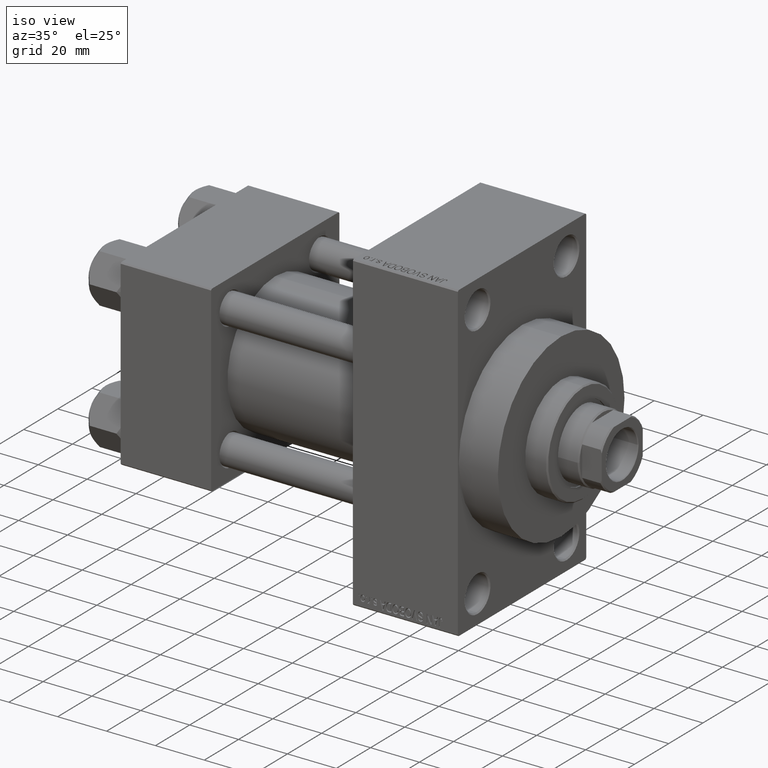
[diagram: clean part render]
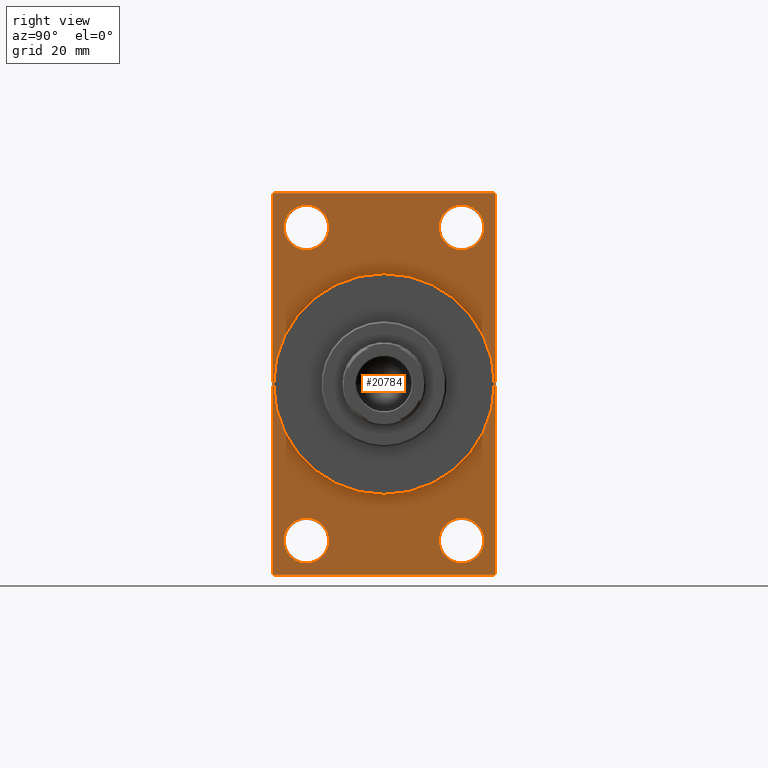
[diagram: tour spotlight — one face highlighted and labeled with its STEP entity id]
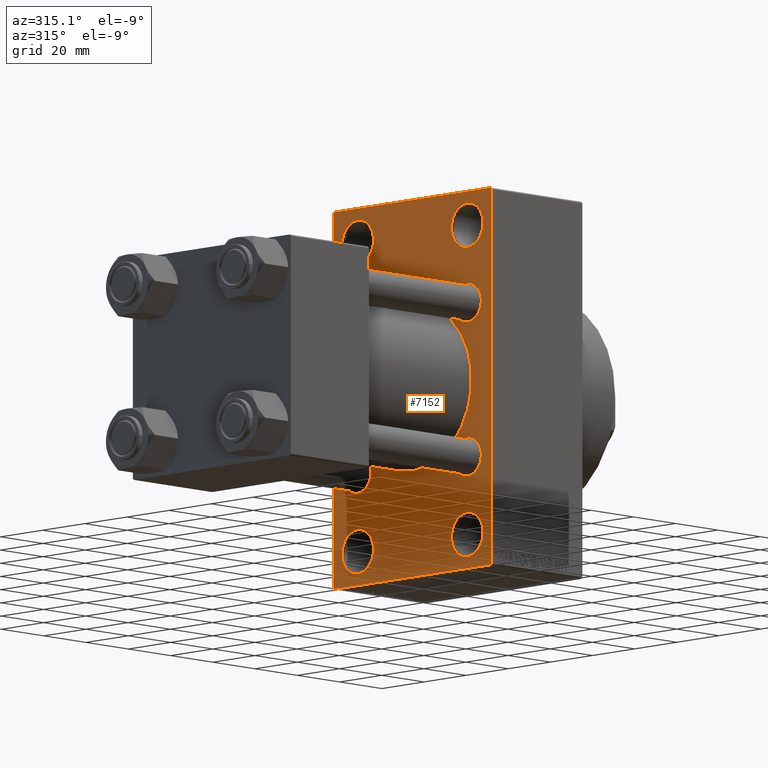
[diagram: tour spotlight — one face highlighted and labeled with its STEP entity id]
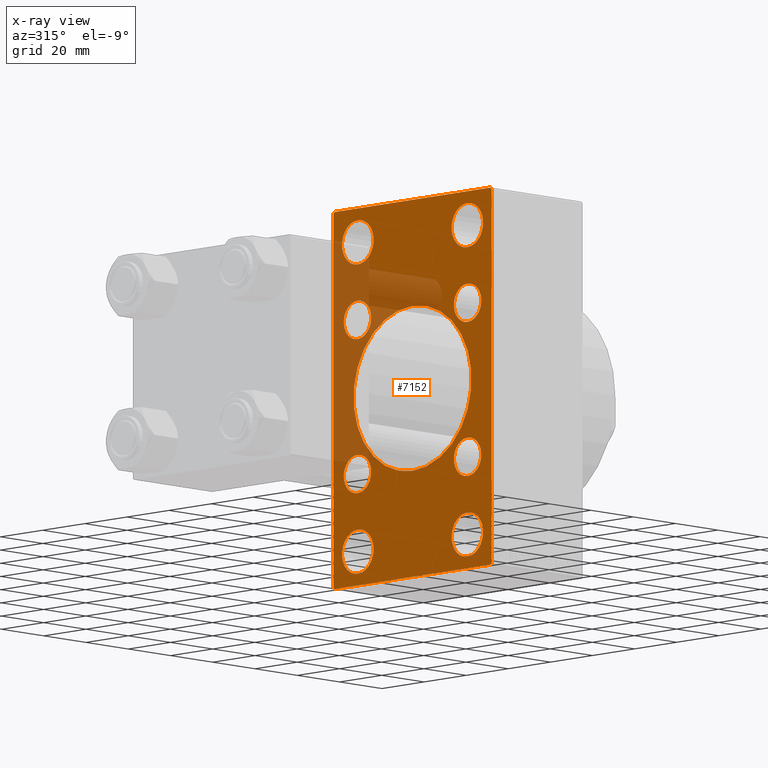
[diagram: x-ray of the same camera — body ghosted, this tour face saturated]
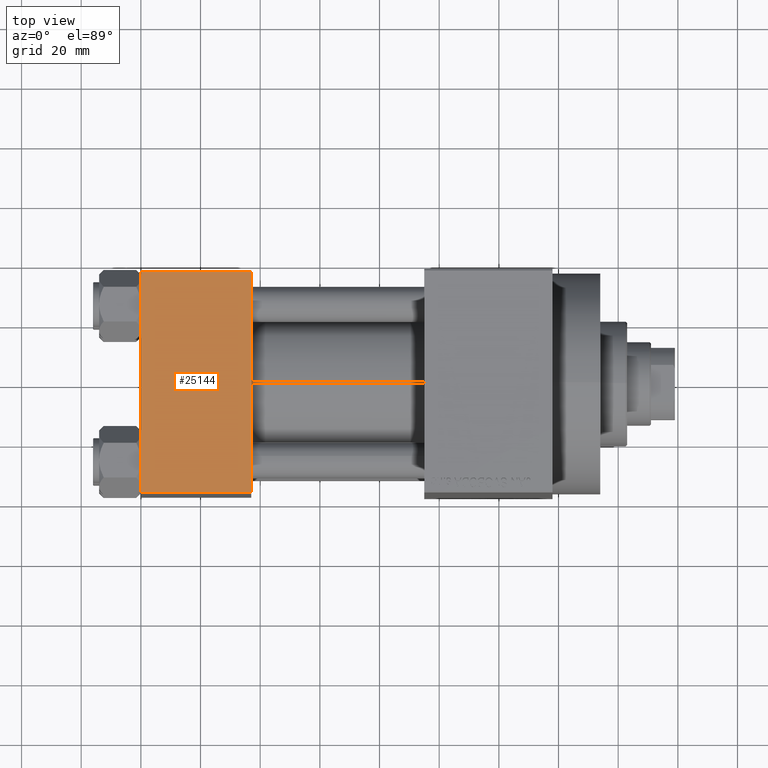
[diagram: tour spotlight — one face highlighted and labeled with its STEP entity id]
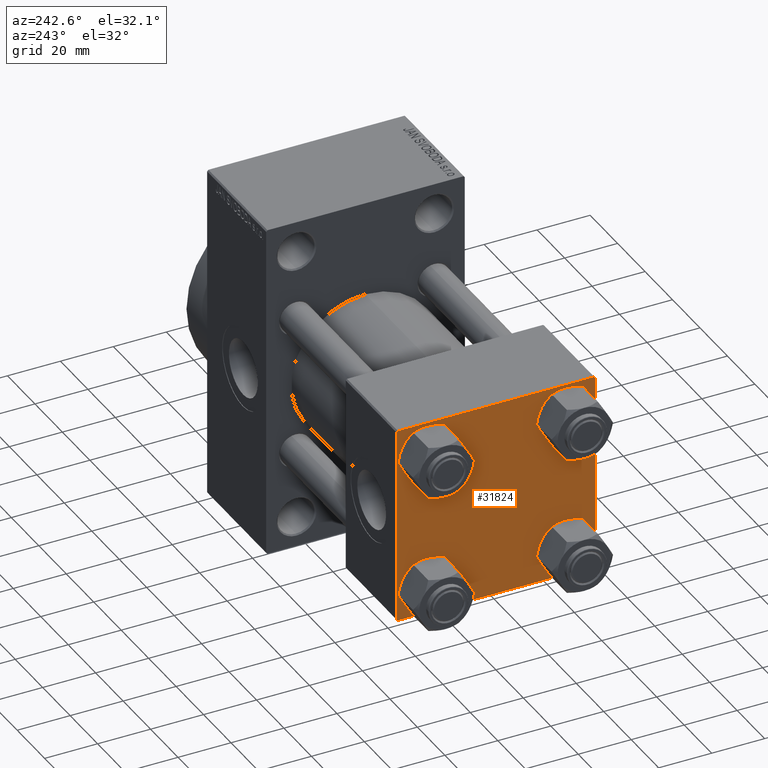
[diagram: tour spotlight — one face highlighted and labeled with its STEP entity id]
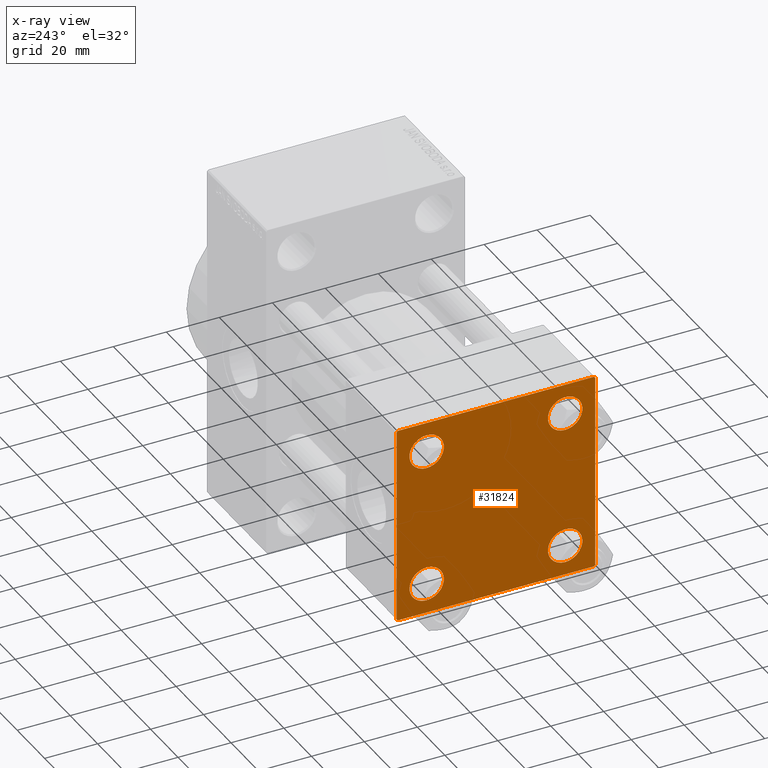
[diagram: x-ray of the same camera — body ghosted, this tour face saturated]
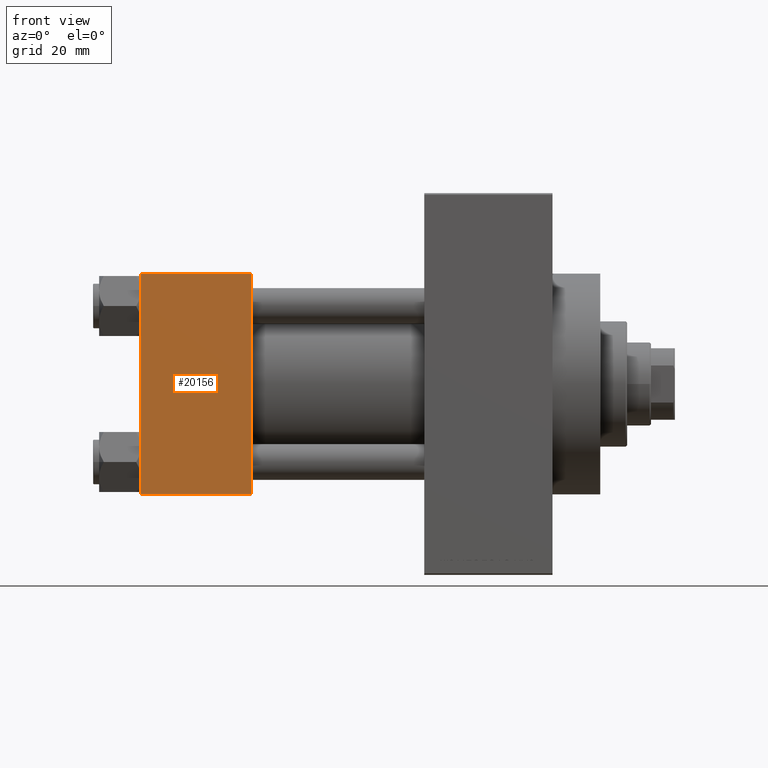
[diagram: tour spotlight — one face highlighted and labeled with its STEP entity id]
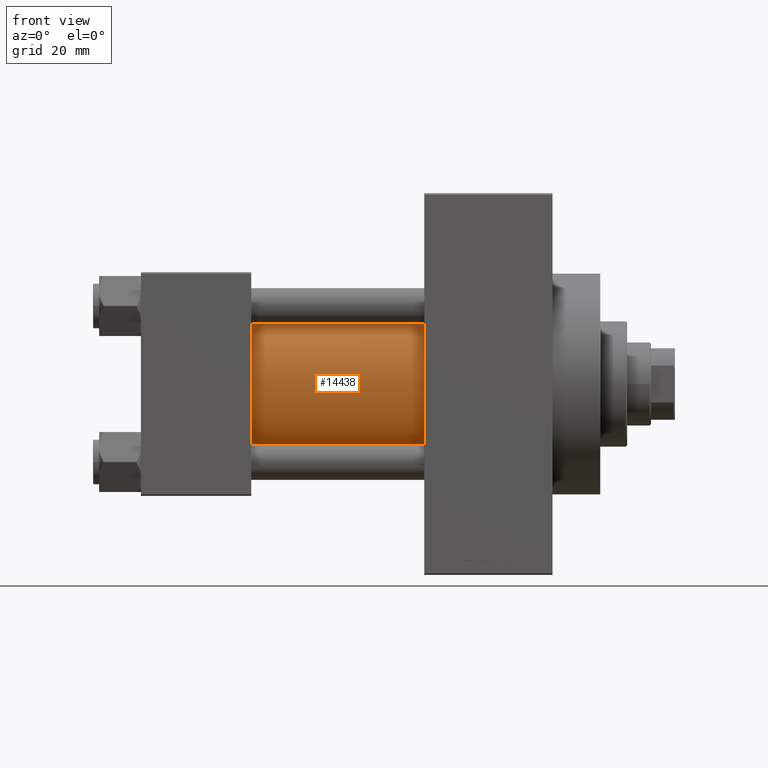
[diagram: tour spotlight — one face highlighted and labeled with its STEP entity id]
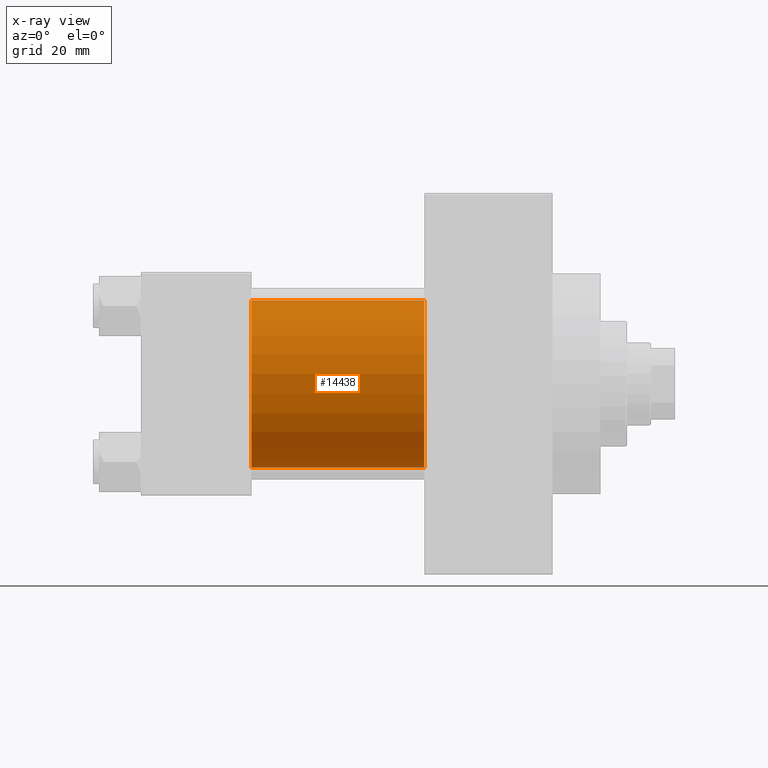
[diagram: x-ray of the same camera — body ghosted, this tour face saturated]
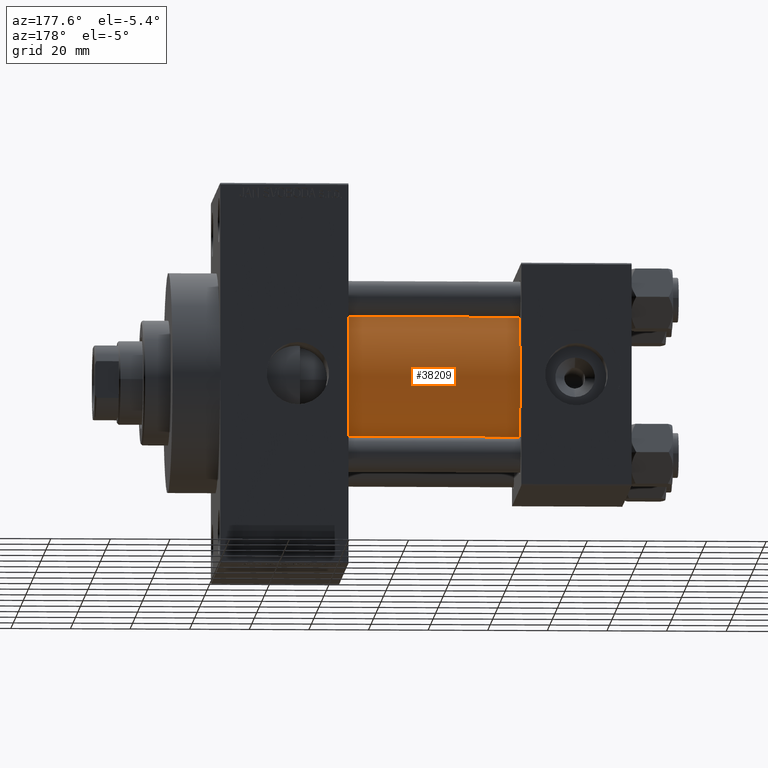
[diagram: tour spotlight — one face highlighted and labeled with its STEP entity id]
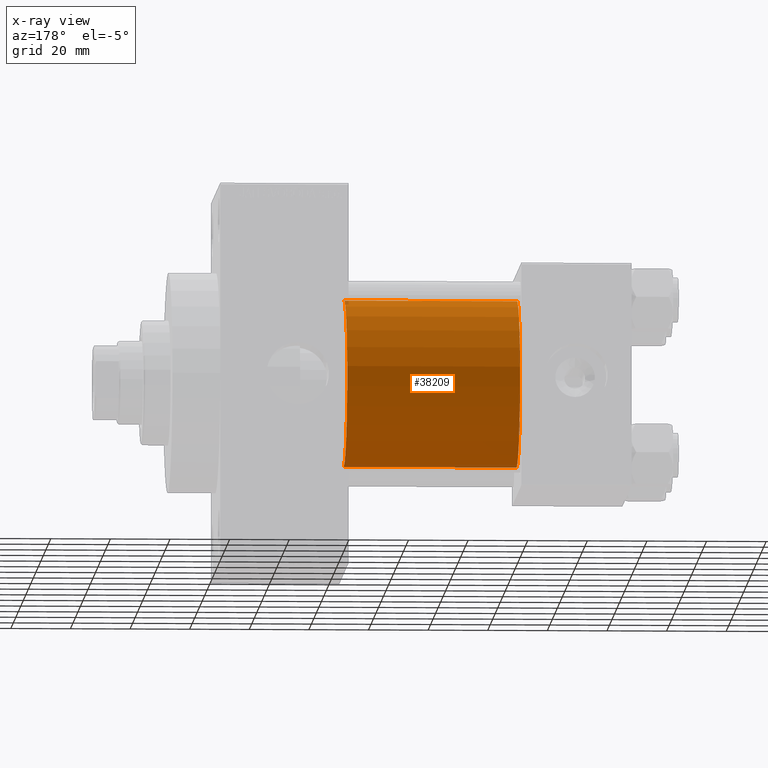
[diagram: x-ray of the same camera — body ghosted, this tour face saturated]
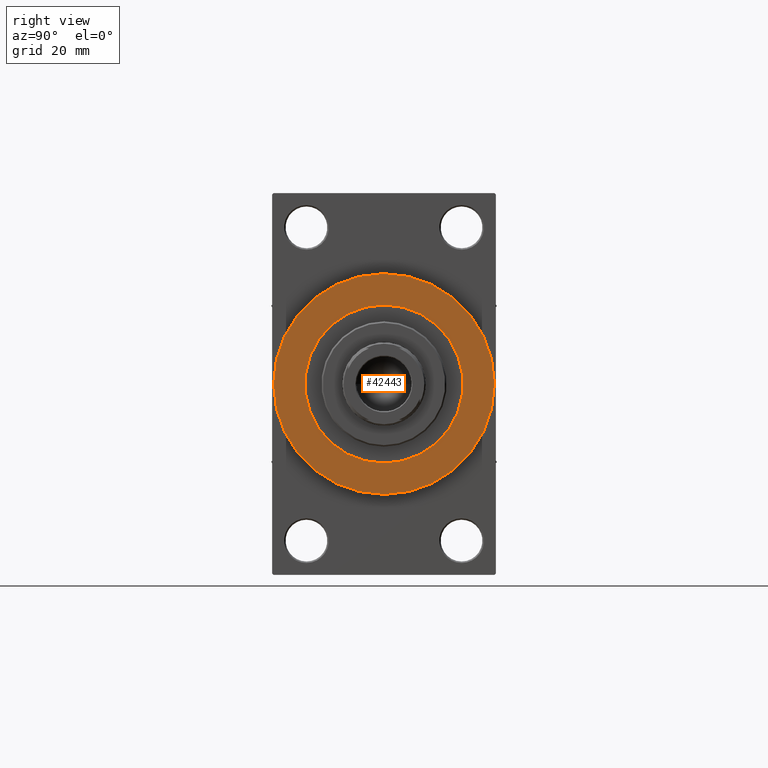
[diagram: tour spotlight — one face highlighted and labeled with its STEP entity id]
A machine part: a face-by-face anatomy tour. The part has 1104 B-rep faces; the first image is the clean iso view, then the 8 largest visible faces are spotlighted one at a time (largest first), each with its STEP entity span.

Face 1 — right view, entity #20784. In plain terms, the highlighted planar face has unit normal (-1, 0, 0).
Definition (entity closure, byte-faithful):
#149 = FACE_BOUND ( 'NONE', #27036, .T. ) ;
#466 = EDGE_LOOP ( 'NONE', ( #6106, #2519, #20688, #30558, #27809, #22960, #23523, #29842 ) ) ;
#1150 = DIRECTION ( 'NONE',  ( 0.000000000000000000, 0.000000000000000000, 1.000000000000000000 ) ) ;
#2130 = VERTEX_POINT ( 'NONE', #4362 ) ;
#2138 = DIRECTION ( 'NONE',  ( 0.000000000000000000, 0.000000000000000000, 1.000000000000000000 ) ) ;
#2519 = ORIENTED_EDGE ( 'NONE', *, *, #7314, .T. ) ;
#2525 = LINE ( 'NONE', #25156, #14847 ) ;
#2662 = AXIS2_PLACEMENT_3D ( 'NONE', #39109, #13339, #2138 ) ;
#3034 = ORIENTED_EDGE ( 'NONE', *, *, #19913, .T. ) ;
#3207 = AXIS2_PLACEMENT_3D ( 'NONE', #35254, #15530, #30089 ) ;
#3228 = CARTESIAN_POINT ( 'NONE',  ( 138.0000000000000000, 26.00000000000000000, 44.99999999999998579 ) ) ;
#3457 = DIRECTION ( 'NONE',  ( 0.000000000000000000, 0.000000000000000000, 1.000000000000000000 ) ) ;
#3509 = FACE_BOUND ( 'NONE', #5778, .T. ) ;
#4150 = VECTOR ( 'NONE', #44673, 999.9999999999998863 ) ;
#4216 = PLANE ( 'NONE',  #33439 ) ;
#4285 = VECTOR ( 'NONE', #9538, 1000.000000000000000 ) ;
#4318 = CIRCLE ( 'NONE', #11941, 7.500000000000007105 ) ;
#4362 = CARTESIAN_POINT ( 'NONE',  ( 138.0000000000000000, -25.99999999999999645, 44.99999999999999289 ) ) ;
#4549 = CARTESIAN_POINT ( 'NONE',  ( 138.0000000000000000, 26.00000000000000000, -52.49999999999999289 ) ) ;
#4639 = DIRECTION ( 'NONE',  ( 0.000000000000000000, -5.421010862427522170E-17, -1.000000000000000000 ) ) ;
#5778 = EDGE_LOOP ( 'NONE', ( #34374, #20359 ) ) ;
#6106 = ORIENTED_EDGE ( 'NONE', *, *, #10602, .T. ) ;
#6440 = CARTESIAN_POINT ( 'NONE',  ( 138.0000000000000000, 36.99999999999999289, -64.00000000000000000 ) ) ;
#6662 = CARTESIAN_POINT ( 'NONE',  ( 138.0000000000000000, -37.49999999999999289, 63.99999999999997158 ) ) ;
#6830 = EDGE_CURVE ( 'NONE', #39885, #44331, #2525, .T. ) ;
#6880 = DIRECTION ( 'NONE',  ( 0.000000000000000000, -1.000000000000000000, -1.850371707708594563E-16 ) ) ;
#7012 = DIRECTION ( 'NONE',  ( -0.000000000000000000, -0.7071067811865524577, -0.7071067811865426878 ) ) ;
#7123 = DIRECTION ( 'NONE',  ( 0.000000000000000000, -1.000000000000000000, -1.850371707708594563E-16 ) ) ;
#7254 = CARTESIAN_POINT ( 'NONE',  ( 138.0000000000000000, 0.000000000000000000, 0.000000000000000000 ) ) ;
#7314 = EDGE_CURVE ( 'NONE', #43993, #32922, #46027, .T. ) ;
#7366 = VECTOR ( 'NONE', #9145, 1000.000000000000000 ) ;
#7599 = CARTESIAN_POINT ( 'NONE',  ( 138.0000000000000000, 37.49999999999999289, -64.00000000000000000 ) ) ;
#7655 = EDGE_CURVE ( 'NONE', #42383, #22725, #40008, .T. ) ;
#8241 = EDGE_LOOP ( 'NONE', ( #32450, #26055 ) ) ;
#8243 = CIRCLE ( 'NONE', #42578, 7.500000000000007105 ) ;
#8401 = CARTESIAN_POINT ( 'NONE',  ( 138.0000000000000000, 37.49999999999999289, -63.50000000000001421 ) ) ;
#9145 = DIRECTION ( 'NONE',  ( 0.000000000000000000, -0.7071067811865672237, 0.7071067811865279218 ) ) ;
#9538 = DIRECTION ( 'NONE',  ( 0.000000000000000000, 0.000000000000000000, -1.000000000000000000 ) ) ;
#9983 = CARTESIAN_POINT ( 'NONE',  ( 138.0000000000000000, 0.000000000000000000, 0.000000000000000000 ) ) ;
#10181 = CARTESIAN_POINT ( 'NONE',  ( 138.0000000000000000, -37.49999999999999289, 63.49999999999994316 ) ) ;
#10468 = CARTESIAN_POINT ( 'NONE',  ( 138.0000000000000000, 37.50000000000000000, 63.99999999999998579 ) ) ;
#10602 = EDGE_CURVE ( 'NONE', #44331, #43993, #46532, .T. ) ;
#10741 = VERTEX_POINT ( 'NONE', #34344 ) ;
#10805 = CARTESIAN_POINT ( 'NONE',  ( 138.0000000000000000, 26.00000000000000000, 52.49999999999999289 ) ) ;
#11194 = CARTESIAN_POINT ( 'NONE',  ( 138.0000000000000000, 37.50000000000000000, 63.49999999999998579 ) ) ;
#11941 = AXIS2_PLACEMENT_3D ( 'NONE', #4549, #19107, #40579 ) ;
#12498 = EDGE_CURVE ( 'NONE', #29792, #41335, #4318, .T. ) ;
#13339 = DIRECTION ( 'NONE',  ( -1.000000000000000000, 0.000000000000000000, -0.000000000000000000 ) ) ;
#13485 = VERTEX_POINT ( 'NONE', #39357 ) ;
#13909 = EDGE_LOOP ( 'NONE', ( #40053, #39300 ) ) ;
#14090 = CARTESIAN_POINT ( 'NONE',  ( 138.0000000000000000, -25.99999999999999645, -52.49999999999999289 ) ) ;
#14165 = VECTOR ( 'NONE', #24703, 1000.000000000000000 ) ;
#14323 = EDGE_CURVE ( 'NONE', #2130, #13485, #29554, .T. ) ;
#14435 = CARTESIAN_POINT ( 'NONE',  ( 138.0000000000000000, -25.99999999999999645, -52.49999999999999289 ) ) ;
#14724 = DIRECTION ( 'NONE',  ( -0.000000000000000000, 0.000000000000000000, 1.000000000000000000 ) ) ;
#14847 = VECTOR ( 'NONE', #7012, 1000.000000000000000 ) ;
#14868 = VERTEX_POINT ( 'NONE', #21766 ) ;
#14873 = DIRECTION ( 'NONE',  ( -1.000000000000000000, 0.000000000000000000, -0.000000000000000000 ) ) ;
#15301 = VECTOR ( 'NONE', #7123, 1000.000000000000000 ) ;
#15530 = DIRECTION ( 'NONE',  ( -1.000000000000000000, 0.000000000000000000, -0.000000000000000000 ) ) ;
#15982 = VERTEX_POINT ( 'NONE', #28166 ) ;
#16090 = CARTESIAN_POINT ( 'NONE',  ( 138.0000000000000000, 37.50000000000000000, 63.99999999999998579 ) ) ;
#16231 = CARTESIAN_POINT ( 'NONE',  ( 138.0000000000000000, -36.99999999999995737, 63.99999999999997158 ) ) ;
#17403 = DIRECTION ( 'NONE',  ( 1.000000000000000000, 0.000000000000000000, 0.000000000000000000 ) ) ;
#18026 = CARTESIAN_POINT ( 'NONE',  ( 138.0000000000000000, 37.49999999999999289, -63.50000000000001421 ) ) ;
#18242 = CIRCLE ( 'NONE', #24333, 7.500000000000007105 ) ;
#18717 = CARTESIAN_POINT ( 'NONE',  ( 138.0000000000000000, -37.49999999999999289, -63.49999999999997158 ) ) ;
#19107 = DIRECTION ( 'NONE',  ( -1.000000000000000000, 0.000000000000000000, -0.000000000000000000 ) ) ;
#19110 = EDGE_CURVE ( 'NONE', #29081, #10741, #8243, .T. ) ;
#19900 = DIRECTION ( 'NONE',  ( 0.000000000000000000, 0.000000000000000000, 1.000000000000000000 ) ) ;
#19913 = EDGE_CURVE ( 'NONE', #15982, #41079, #38010, .T. ) ;
#20359 = ORIENTED_EDGE ( 'NONE', *, *, #21904, .T. ) ;
#20688 = ORIENTED_EDGE ( 'NONE', *, *, #25105, .F. ) ;
#20784 = ADVANCED_FACE ( 'NONE', ( #36907, #3509, #149, #32632, #43599, #26163 ), #4216, .F. ) ;
#21543 = EDGE_LOOP ( 'NONE', ( #42926, #3034 ) ) ;
#21766 = CARTESIAN_POINT ( 'NONE',  ( 138.0000000000000000, 36.99999999999997158, 63.99999999999998579 ) ) ;
#21845 = DIRECTION ( 'NONE',  ( 0.000000000000000000, 0.000000000000000000, -1.000000000000000000 ) ) ;
#21904 = EDGE_CURVE ( 'NONE', #10741, #29081, #18242, .T. ) ;
#22059 = EDGE_CURVE ( 'NONE', #25068, #26584, #34466, .T. ) ;
#22065 = VECTOR ( 'NONE', #4639, 1000.000000000000000 ) ;
#22311 = DIRECTION ( 'NONE',  ( -1.000000000000000000, 0.000000000000000000, -0.000000000000000000 ) ) ;
#22725 = VERTEX_POINT ( 'NONE', #28354 ) ;
#22907 = CIRCLE ( 'NONE', #31301, 7.500000000000007105 ) ;
#22960 = ORIENTED_EDGE ( 'NONE', *, *, #46205, .T. ) ;
#23520 = AXIS2_PLACEMENT_3D ( 'NONE', #10805, #14873, #28483 ) ;
#23523 = ORIENTED_EDGE ( 'NONE', *, *, #28758, .T. ) ;
#23607 = CARTESIAN_POINT ( 'NONE',  ( 138.0000000000000000, -25.99999999999999645, -60.00000000000000000 ) ) ;
#24194 = LINE ( 'NONE', #30907, #7366 ) ;
#24333 = AXIS2_PLACEMENT_3D ( 'NONE', #14435, #22311, #3457 ) ;
#24585 = EDGE_CURVE ( 'NONE', #41079, #15982, #22907, .T. ) ;
#24703 = DIRECTION ( 'NONE',  ( -0.000000000000000000, 0.7071067811865573427, 0.7071067811865378028 ) ) ;
#25068 = VERTEX_POINT ( 'NONE', #11194 ) ;
#25105 = EDGE_CURVE ( 'NONE', #45641, #32922, #40316, .T. ) ;
#25156 = CARTESIAN_POINT ( 'NONE',  ( 138.0000000000000000, -37.49999999999999289, 63.49999999999994316 ) ) ;
#25278 = AXIS2_PLACEMENT_3D ( 'NONE', #9983, #17403, #27911 ) ;
#25454 = CARTESIAN_POINT ( 'NONE',  ( 138.0000000000000000, 0.000000000000000000, 0.000000000000000000 ) ) ;
#26055 = ORIENTED_EDGE ( 'NONE', *, *, #31027, .T. ) ;
#26163 = FACE_OUTER_BOUND ( 'NONE', #466, .T. ) ;
#26282 = AXIS2_PLACEMENT_3D ( 'NONE', #7254, #43549, #21845 ) ;
#26584 = VERTEX_POINT ( 'NONE', #8401 ) ;
#26865 = VECTOR ( 'NONE', #6880, 1000.000000000000000 ) ;
#27017 = EDGE_CURVE ( 'NONE', #22725, #42383, #45874, .T. ) ;
#27036 = EDGE_LOOP ( 'NONE', ( #36793, #43017 ) ) ;
#27809 = ORIENTED_EDGE ( 'NONE', *, *, #22059, .F. ) ;
#27911 = DIRECTION ( 'NONE',  ( 0.000000000000000000, 0.000000000000000000, -1.000000000000000000 ) ) ;
#28166 = CARTESIAN_POINT ( 'NONE',  ( 138.0000000000000000, 26.00000000000000000, 60.00000000000000000 ) ) ;
#28354 = CARTESIAN_POINT ( 'NONE',  ( 138.0000000000000000, 0.000000000000000000, 37.00000000000000000 ) ) ;
#28483 = DIRECTION ( 'NONE',  ( 0.000000000000000000, 0.000000000000000000, 1.000000000000000000 ) ) ;
#28646 = DIRECTION ( 'NONE',  ( -1.000000000000000000, 0.000000000000000000, -0.000000000000000000 ) ) ;
#28758 = EDGE_CURVE ( 'NONE', #14868, #39885, #46755, .T. ) ;
#29081 = VERTEX_POINT ( 'NONE', #23607 ) ;
#29554 = CIRCLE ( 'NONE', #44795, 7.500000000000007105 ) ;
#29792 = VERTEX_POINT ( 'NONE', #40578 ) ;
#29796 = CARTESIAN_POINT ( 'NONE',  ( 138.0000000000000000, -25.99999999999999645, 52.50000000000000000 ) ) ;
#29842 = ORIENTED_EDGE ( 'NONE', *, *, #6830, .T. ) ;
#30089 = DIRECTION ( 'NONE',  ( 0.000000000000000000, 0.000000000000000000, 1.000000000000000000 ) ) ;
#30558 = ORIENTED_EDGE ( 'NONE', *, *, #41159, .T. ) ;
#30907 = CARTESIAN_POINT ( 'NONE',  ( 138.0000000000000000, 36.99999999999997158, 63.99999999999998579 ) ) ;
#31027 = EDGE_CURVE ( 'NONE', #13485, #2130, #33034, .T. ) ;
#31301 = AXIS2_PLACEMENT_3D ( 'NONE', #45200, #44721, #19900 ) ;
#31545 = DIRECTION ( 'NONE',  ( 0.000000000000000000, 0.000000000000000000, 1.000000000000000000 ) ) ;
#31710 = CARTESIAN_POINT ( 'NONE',  ( 138.0000000000000000, -36.99999999999993605, -64.00000000000001421 ) ) ;
#32450 = ORIENTED_EDGE ( 'NONE', *, *, #14323, .T. ) ;
#32632 = FACE_BOUND ( 'NONE', #21543, .T. ) ;
#32922 = VERTEX_POINT ( 'NONE', #37061 ) ;
#33034 = CIRCLE ( 'NONE', #3207, 7.500000000000007105 ) ;
#33103 = DIRECTION ( 'NONE',  ( -1.000000000000000000, 0.000000000000000000, -0.000000000000000000 ) ) ;
#33439 = AXIS2_PLACEMENT_3D ( 'NONE', #25454, #33103, #14724 ) ;
#34239 = CARTESIAN_POINT ( 'NONE',  ( 138.0000000000000000, 26.00000000000000000, -44.99999999999998579 ) ) ;
#34344 = CARTESIAN_POINT ( 'NONE',  ( 138.0000000000000000, -25.99999999999999645, -44.99999999999998579 ) ) ;
#34374 = ORIENTED_EDGE ( 'NONE', *, *, #19110, .T. ) ;
#34466 = LINE ( 'NONE', #16090, #22065 ) ;
#35254 = CARTESIAN_POINT ( 'NONE',  ( 138.0000000000000000, -25.99999999999999645, 52.50000000000000000 ) ) ;
#36793 = ORIENTED_EDGE ( 'NONE', *, *, #12498, .T. ) ;
#36907 = FACE_BOUND ( 'NONE', #8241, .T. ) ;
#37061 = CARTESIAN_POINT ( 'NONE',  ( 138.0000000000000000, -36.99999999999993605, -64.00000000000001421 ) ) ;
#38010 = CIRCLE ( 'NONE', #23520, 7.500000000000007105 ) ;
#39018 = EDGE_CURVE ( 'NONE', #41335, #29792, #43814, .T. ) ;
#39109 = CARTESIAN_POINT ( 'NONE',  ( 138.0000000000000000, 26.00000000000000000, -52.49999999999999289 ) ) ;
#39300 = ORIENTED_EDGE ( 'NONE', *, *, #7655, .F. ) ;
#39357 = CARTESIAN_POINT ( 'NONE',  ( 138.0000000000000000, -25.99999999999999645, 60.00000000000000711 ) ) ;
#39631 = CARTESIAN_POINT ( 'NONE',  ( 138.0000000000000000, 4.531193156845206793E-15, -37.00000000000000000 ) ) ;
#39885 = VERTEX_POINT ( 'NONE', #16231 ) ;
#40008 = CIRCLE ( 'NONE', #26282, 37.00000000000000000 ) ;
#40053 = ORIENTED_EDGE ( 'NONE', *, *, #27017, .F. ) ;
#40316 = LINE ( 'NONE', #7599, #15301 ) ;
#40578 = CARTESIAN_POINT ( 'NONE',  ( 138.0000000000000000, 26.00000000000000000, -60.00000000000000000 ) ) ;
#40579 = DIRECTION ( 'NONE',  ( 0.000000000000000000, 0.000000000000000000, 1.000000000000000000 ) ) ;
#41079 = VERTEX_POINT ( 'NONE', #3228 ) ;
#41159 = EDGE_CURVE ( 'NONE', #45641, #26584, #46663, .T. ) ;
#41335 = VERTEX_POINT ( 'NONE', #34239 ) ;
#41483 = DIRECTION ( 'NONE',  ( -1.000000000000000000, 0.000000000000000000, -0.000000000000000000 ) ) ;
#42383 = VERTEX_POINT ( 'NONE', #39631 ) ;
#42578 = AXIS2_PLACEMENT_3D ( 'NONE', #14090, #28646, #31545 ) ;
#42926 = ORIENTED_EDGE ( 'NONE', *, *, #24585, .T. ) ;
#43017 = ORIENTED_EDGE ( 'NONE', *, *, #39018, .T. ) ;
#43549 = DIRECTION ( 'NONE',  ( 1.000000000000000000, 0.000000000000000000, 0.000000000000000000 ) ) ;
#43599 = FACE_BOUND ( 'NONE', #13909, .T. ) ;
#43814 = CIRCLE ( 'NONE', #2662, 7.500000000000007105 ) ;
#43993 = VERTEX_POINT ( 'NONE', #18717 ) ;
#44331 = VERTEX_POINT ( 'NONE', #10181 ) ;
#44673 = DIRECTION ( 'NONE',  ( 0.000000000000000000, 0.7071067811865574537, -0.7071067811865376918 ) ) ;
#44721 = DIRECTION ( 'NONE',  ( -1.000000000000000000, 0.000000000000000000, -0.000000000000000000 ) ) ;
#44795 = AXIS2_PLACEMENT_3D ( 'NONE', #29796, #41483, #1150 ) ;
#45200 = CARTESIAN_POINT ( 'NONE',  ( 138.0000000000000000, 26.00000000000000000, 52.49999999999999289 ) ) ;
#45641 = VERTEX_POINT ( 'NONE', #6440 ) ;
#45874 = CIRCLE ( 'NONE', #25278, 37.00000000000000000 ) ;
#46027 = LINE ( 'NONE', #31710, #4150 ) ;
#46205 = EDGE_CURVE ( 'NONE', #25068, #14868, #24194, .T. ) ;
#46532 = LINE ( 'NONE', #6662, #4285 ) ;
#46663 = LINE ( 'NONE', #18026, #14165 ) ;
#46755 = LINE ( 'NONE', #10468, #26865 ) ;

Face 2 — auxiliary view, entity #7152. An x-ray twin of the same camera follows (body ghosted, this face saturated) — the face is partly hidden behind the body. In plain terms, the highlighted planar face has unit normal (-1, 0, 0).
Definition (entity closure, byte-faithful):
#174 = CARTESIAN_POINT ( 'NONE',  ( 95.00000000000000000, -26.14999999999999147, 26.15000000000000924 ) ) ;
#687 = EDGE_CURVE ( 'NONE', #18827, #34502, #39006, .T. ) ;
#999 = CARTESIAN_POINT ( 'NONE',  ( 95.00000000000000000, 26.14999999999999858, 32.65000000000001990 ) ) ;
#1118 = DIRECTION ( 'NONE',  ( 1.000000000000000000, -0.000000000000000000, 0.000000000000000000 ) ) ;
#1348 = CIRCLE ( 'NONE', #42512, 7.499999999999978684 ) ;
#1631 = EDGE_CURVE ( 'NONE', #2236, #31644, #30679, .T. ) ;
#1666 = AXIS2_PLACEMENT_3D ( 'NONE', #7018, #36147, #14677 ) ;
#1909 = EDGE_LOOP ( 'NONE', ( #40394, #40943 ) ) ;
#1999 = CARTESIAN_POINT ( 'NONE',  ( 95.00000000000000000, 37.50000000000000000, 63.49999999999998579 ) ) ;
#2235 = FACE_BOUND ( 'NONE', #25832, .T. ) ;
#2236 = VERTEX_POINT ( 'NONE', #46330 ) ;
#2504 = EDGE_CURVE ( 'NONE', #15282, #22734, #28298, .T. ) ;
#2534 = VERTEX_POINT ( 'NONE', #3065 ) ;
#2691 = ORIENTED_EDGE ( 'NONE', *, *, #15545, .T. ) ;
#2714 = EDGE_CURVE ( 'NONE', #15272, #25604, #47212, .T. ) ;
#2729 = EDGE_CURVE ( 'NONE', #31644, #2236, #4663, .T. ) ;
#2860 = VERTEX_POINT ( 'NONE', #6292 ) ;
#3065 = CARTESIAN_POINT ( 'NONE',  ( 95.00000000000000000, -37.49999999999999289, 63.49999999999994316 ) ) ;
#3189 = DIRECTION ( 'NONE',  ( 1.000000000000000000, -0.000000000000000000, 0.000000000000000000 ) ) ;
#3721 = VERTEX_POINT ( 'NONE', #38587 ) ;
#3885 = CARTESIAN_POINT ( 'NONE',  ( 95.00000000000000000, 37.49999999999999289, -64.00000000000000000 ) ) ;
#3926 = EDGE_LOOP ( 'NONE', ( #12069, #40709 ) ) ;
#3933 = CARTESIAN_POINT ( 'NONE',  ( 95.00000000000000000, -2.602085213965210642E-15, 28.00000000000000000 ) ) ;
#4025 = LINE ( 'NONE', #28207, #37670 ) ;
#4663 = CIRCLE ( 'NONE', #31346, 7.499999999999978684 ) ;
#4721 = VERTEX_POINT ( 'NONE', #17986 ) ;
#5012 = DIRECTION ( 'NONE',  ( 1.000000000000000000, -0.000000000000000000, 0.000000000000000000 ) ) ;
#5559 = CARTESIAN_POINT ( 'NONE',  ( 95.00000000000000000, 26.14999999999999858, -26.15000000000000213 ) ) ;
#5690 = CARTESIAN_POINT ( 'NONE',  ( 95.00000000000000000, 26.00000000000000000, -59.99999999999997158 ) ) ;
#6292 = CARTESIAN_POINT ( 'NONE',  ( 95.00000000000000000, -36.99999999999995737, 63.99999999999997158 ) ) ;
#6552 = AXIS2_PLACEMENT_3D ( 'NONE', #174, #11155, #14985 ) ;
#6774 = EDGE_LOOP ( 'NONE', ( #44190, #20665 ) ) ;
#6960 = FACE_BOUND ( 'NONE', #32987, .T. ) ;
#7018 = CARTESIAN_POINT ( 'NONE',  ( 95.00000000000000000, 26.14999999999999858, 26.15000000000000213 ) ) ;
#7125 = CIRCLE ( 'NONE', #26957, 28.00000000000000000 ) ;
#7152 = ADVANCED_FACE ( 'NONE', ( #32051, #31589, #39671, #6960, #34927, #2235, #46137, #13438, #27997, #24408 ), #21780, .T. ) ;
#7204 = DIRECTION ( 'NONE',  ( 0.000000000000000000, -1.000000000000000000, -1.850371707708594563E-16 ) ) ;
#8072 = ORIENTED_EDGE ( 'NONE', *, *, #37689, .T. ) ;
#8289 = EDGE_CURVE ( 'NONE', #28662, #21954, #22477, .T. ) ;
#8422 = DIRECTION ( 'NONE',  ( 0.000000000000000000, 0.000000000000000000, 1.000000000000000000 ) ) ;
#8687 = VERTEX_POINT ( 'NONE', #35056 ) ;
#8906 = CARTESIAN_POINT ( 'NONE',  ( 95.00000000000000000, -50.49999999999970868, 50.50000000000040501 ) ) ;
#9240 = DIRECTION ( 'NONE',  ( 1.000000000000000000, 0.000000000000000000, 0.000000000000000000 ) ) ;
#9273 = ORIENTED_EDGE ( 'NONE', *, *, #1631, .T. ) ;
#9306 = EDGE_CURVE ( 'NONE', #44468, #8687, #43076, .T. ) ;
#9346 = ORIENTED_EDGE ( 'NONE', *, *, #9306, .T. ) ;
#9387 = CIRCLE ( 'NONE', #26170, 7.499999999999978684 ) ;
#9588 = AXIS2_PLACEMENT_3D ( 'NONE', #45220, #38050, #23713 ) ;
#9605 = CARTESIAN_POINT ( 'NONE',  ( 95.00000000000000000, 26.14999999999999858, -26.15000000000000213 ) ) ;
#9911 = EDGE_LOOP ( 'NONE', ( #32239, #9346 ) ) ;
#10243 = CARTESIAN_POINT ( 'NONE',  ( 95.00000000000000000, -26.14999999999999147, -26.15000000000000924 ) ) ;
#10757 = DIRECTION ( 'NONE',  ( 1.000000000000000000, -0.000000000000000000, 0.000000000000000000 ) ) ;
#11155 = DIRECTION ( 'NONE',  ( 1.000000000000000000, -0.000000000000000000, 0.000000000000000000 ) ) ;
#11498 = VECTOR ( 'NONE', #43630, 1000.000000000000000 ) ;
#11519 = CIRCLE ( 'NONE', #25240, 7.499999999999978684 ) ;
#11714 = VERTEX_POINT ( 'NONE', #46486 ) ;
#12069 = ORIENTED_EDGE ( 'NONE', *, *, #41599, .T. ) ;
#12119 = EDGE_CURVE ( 'NONE', #21595, #4721, #34812, .T. ) ;
#12311 = DIRECTION ( 'NONE',  ( 1.000000000000000000, -0.000000000000000000, 0.000000000000000000 ) ) ;
#12377 = VECTOR ( 'NONE', #19817, 1000.000000000000000 ) ;
#12494 = VERTEX_POINT ( 'NONE', #37239 ) ;
#12523 = AXIS2_PLACEMENT_3D ( 'NONE', #43972, #29405, #22482 ) ;
#12701 = ORIENTED_EDGE ( 'NONE', *, *, #2714, .T. ) ;
#12722 = DIRECTION ( 'NONE',  ( 1.000000000000000000, -0.000000000000000000, 0.000000000000000000 ) ) ;
#13031 = AXIS2_PLACEMENT_3D ( 'NONE', #33884, #5012, #37942 ) ;
#13267 = LINE ( 'NONE', #27595, #32627 ) ;
#13438 = FACE_BOUND ( 'NONE', #9911, .T. ) ;
#14628 = EDGE_CURVE ( 'NONE', #22734, #15282, #1348, .T. ) ;
#14677 = DIRECTION ( 'NONE',  ( 0.000000000000000000, 0.000000000000000000, 1.000000000000000000 ) ) ;
#14720 = EDGE_LOOP ( 'NONE', ( #9273, #16063 ) ) ;
#14761 = DIRECTION ( 'NONE',  ( 0.000000000000000000, -1.000000000000000000, -1.850371707708594563E-16 ) ) ;
#14985 = DIRECTION ( 'NONE',  ( 0.000000000000000000, 0.000000000000000000, 1.000000000000000000 ) ) ;
#15272 = VERTEX_POINT ( 'NONE', #16134 ) ;
#15282 = VERTEX_POINT ( 'NONE', #20424 ) ;
#15545 = EDGE_CURVE ( 'NONE', #28172, #11714, #15867, .T. ) ;
#15788 = CARTESIAN_POINT ( 'NONE',  ( 95.00000000000000000, -25.99999999999999645, -52.49999999999999289 ) ) ;
#15867 = CIRCLE ( 'NONE', #44076, 6.500000000000008882 ) ;
#16063 = ORIENTED_EDGE ( 'NONE', *, *, #2729, .T. ) ;
#16129 = EDGE_LOOP ( 'NONE', ( #34928, #26106 ) ) ;
#16134 = CARTESIAN_POINT ( 'NONE',  ( 95.00000000000000000, 37.49999999999999289, -63.50000000000001421 ) ) ;
#16691 = LINE ( 'NONE', #38640, #12377 ) ;
#17986 = CARTESIAN_POINT ( 'NONE',  ( 95.00000000000000000, -26.14999999999999147, 32.65000000000001990 ) ) ;
#18158 = DIRECTION ( 'NONE',  ( 0.000000000000000000, 0.7071067811865672237, -0.7071067811865279218 ) ) ;
#18206 = DIRECTION ( 'NONE',  ( 1.000000000000000000, 0.000000000000000000, 0.000000000000000000 ) ) ;
#18336 = CARTESIAN_POINT ( 'NONE',  ( 95.00000000000000000, -25.99999999999999645, 52.50000000000000000 ) ) ;
#18682 = ORIENTED_EDGE ( 'NONE', *, *, #37090, .T. ) ;
#18713 = EDGE_CURVE ( 'NONE', #44695, #3721, #13267, .T. ) ;
#18827 = VERTEX_POINT ( 'NONE', #999 ) ;
#19012 = CARTESIAN_POINT ( 'NONE',  ( 95.00000000000000000, 26.00000000000000000, 52.49999999999999289 ) ) ;
#19136 = DIRECTION ( 'NONE',  ( 1.000000000000000000, -0.000000000000000000, 0.000000000000000000 ) ) ;
#19793 = AXIS2_PLACEMENT_3D ( 'NONE', #15788, #19136, #22945 ) ;
#19817 = DIRECTION ( 'NONE',  ( 0.000000000000000000, -5.421010862427522170E-17, -1.000000000000000000 ) ) ;
#19911 = DIRECTION ( 'NONE',  ( 1.000000000000000000, -0.000000000000000000, 0.000000000000000000 ) ) ;
#20145 = CIRCLE ( 'NONE', #23943, 6.500000000000008882 ) ;
#20247 = CARTESIAN_POINT ( 'NONE',  ( 95.00000000000000000, -2.602085213965210642E-15, 0.000000000000000000 ) ) ;
#20424 = CARTESIAN_POINT ( 'NONE',  ( 95.00000000000000000, 26.00000000000000000, 45.00000000000001421 ) ) ;
#20665 = ORIENTED_EDGE ( 'NONE', *, *, #26397, .T. ) ;
#20779 = CARTESIAN_POINT ( 'NONE',  ( 95.00000000000000000, 8.269258236473776482E-16, -28.00000000000000000 ) ) ;
#21446 = EDGE_CURVE ( 'NONE', #46323, #12494, #42640, .T. ) ;
#21595 = VERTEX_POINT ( 'NONE', #42504 ) ;
#21780 = PLANE ( 'NONE',  #12523 ) ;
#21954 = VERTEX_POINT ( 'NONE', #3933 ) ;
#22154 = VERTEX_POINT ( 'NONE', #1999 ) ;
#22477 = CIRCLE ( 'NONE', #46861, 28.00000000000000000 ) ;
#22482 = DIRECTION ( 'NONE',  ( -0.000000000000000000, 0.000000000000000000, 1.000000000000000000 ) ) ;
#22512 = AXIS2_PLACEMENT_3D ( 'NONE', #23584, #27873, #34804 ) ;
#22734 = VERTEX_POINT ( 'NONE', #28582 ) ;
#22848 = CARTESIAN_POINT ( 'NONE',  ( 95.00000000000000000, -25.99999999999999645, 52.50000000000000000 ) ) ;
#22945 = DIRECTION ( 'NONE',  ( 0.000000000000000000, 0.000000000000000000, 1.000000000000000000 ) ) ;
#23214 = ORIENTED_EDGE ( 'NONE', *, *, #43977, .F. ) ;
#23479 = DIRECTION ( 'NONE',  ( -0.000000000000000000, 0.7071067811865524577, 0.7071067811865426878 ) ) ;
#23584 = CARTESIAN_POINT ( 'NONE',  ( 95.00000000000000000, -26.14999999999999147, -26.15000000000000924 ) ) ;
#23713 = DIRECTION ( 'NONE',  ( 0.000000000000000000, 0.000000000000000000, 1.000000000000000000 ) ) ;
#23943 = AXIS2_PLACEMENT_3D ( 'NONE', #9605, #24183, #38743 ) ;
#23991 = ORIENTED_EDGE ( 'NONE', *, *, #29031, .T. ) ;
#24183 = DIRECTION ( 'NONE',  ( 1.000000000000000000, -0.000000000000000000, 0.000000000000000000 ) ) ;
#24408 = FACE_OUTER_BOUND ( 'NONE', #25337, .T. ) ;
#24517 = CARTESIAN_POINT ( 'NONE',  ( 95.00000000000000000, -26.14999999999999147, -32.65000000000001990 ) ) ;
#24930 = EDGE_CURVE ( 'NONE', #12494, #46323, #32079, .T. ) ;
#25157 = CARTESIAN_POINT ( 'NONE',  ( 95.00000000000000000, 36.99999999999999289, -64.00000000000000000 ) ) ;
#25240 = AXIS2_PLACEMENT_3D ( 'NONE', #43041, #3189, #25614 ) ;
#25337 = EDGE_LOOP ( 'NONE', ( #8072, #37640, #23214, #18682, #39681, #45171, #23991, #12701 ) ) ;
#25604 = VERTEX_POINT ( 'NONE', #25157 ) ;
#25614 = DIRECTION ( 'NONE',  ( 0.000000000000000000, 0.000000000000000000, 1.000000000000000000 ) ) ;
#25832 = EDGE_LOOP ( 'NONE', ( #33026, #36075 ) ) ;
#25859 = EDGE_CURVE ( 'NONE', #8687, #44468, #46581, .T. ) ;
#25913 = CARTESIAN_POINT ( 'NONE',  ( 95.00000000000000000, 26.14999999999999858, -19.64999999999999503 ) ) ;
#26106 = ORIENTED_EDGE ( 'NONE', *, *, #21446, .T. ) ;
#26170 = AXIS2_PLACEMENT_3D ( 'NONE', #36547, #10757, #29151 ) ;
#26397 = EDGE_CURVE ( 'NONE', #46394, #26799, #11519, .T. ) ;
#26799 = VERTEX_POINT ( 'NONE', #33197 ) ;
#26957 = AXIS2_PLACEMENT_3D ( 'NONE', #20247, #9240, #27397 ) ;
#27076 = DIRECTION ( 'NONE',  ( 0.000000000000000000, 0.000000000000000000, 1.000000000000000000 ) ) ;
#27151 = CIRCLE ( 'NONE', #6552, 6.500000000000008882 ) ;
#27397 = DIRECTION ( 'NONE',  ( 0.000000000000000000, 0.000000000000000000, -1.000000000000000000 ) ) ;
#27422 = CARTESIAN_POINT ( 'NONE',  ( 95.00000000000000000, -25.99999999999999645, -59.99999999999997158 ) ) ;
#27595 = CARTESIAN_POINT ( 'NONE',  ( 95.00000000000000000, -50.49999999999945999, -50.50000000000086686 ) ) ;
#27873 = DIRECTION ( 'NONE',  ( 1.000000000000000000, -0.000000000000000000, 0.000000000000000000 ) ) ;
#27997 = FACE_BOUND ( 'NONE', #1909, .T. ) ;
#27999 = ORIENTED_EDGE ( 'NONE', *, *, #37227, .T. ) ;
#28172 = VERTEX_POINT ( 'NONE', #25913 ) ;
#28207 = CARTESIAN_POINT ( 'NONE',  ( 95.00000000000000000, 37.50000000000000000, 63.99999999999998579 ) ) ;
#28298 = CIRCLE ( 'NONE', #13031, 7.499999999999978684 ) ;
#28582 = CARTESIAN_POINT ( 'NONE',  ( 95.00000000000000000, 26.00000000000000000, 59.99999999999997158 ) ) ;
#28662 = VERTEX_POINT ( 'NONE', #20779 ) ;
#29031 = EDGE_CURVE ( 'NONE', #22154, #15272, #16691, .T. ) ;
#29071 = CARTESIAN_POINT ( 'NONE',  ( 95.00000000000000000, 50.49999999999948841, -50.50000000000088107 ) ) ;
#29151 = DIRECTION ( 'NONE',  ( 0.000000000000000000, 0.000000000000000000, 1.000000000000000000 ) ) ;
#29405 = DIRECTION ( 'NONE',  ( -1.000000000000000000, 0.000000000000000000, -0.000000000000000000 ) ) ;
#29412 = LINE ( 'NONE', #3885, #36928 ) ;
#29509 = DIRECTION ( 'NONE',  ( 0.000000000000000000, 0.000000000000000000, 1.000000000000000000 ) ) ;
#29877 = CARTESIAN_POINT ( 'NONE',  ( 95.00000000000000000, -2.602085213965210642E-15, 0.000000000000000000 ) ) ;
#30187 = CIRCLE ( 'NONE', #9588, 6.500000000000008882 ) ;
#30679 = CIRCLE ( 'NONE', #45040, 7.499999999999978684 ) ;
#30903 = EDGE_CURVE ( 'NONE', #26799, #46394, #9387, .T. ) ;
#31346 = AXIS2_PLACEMENT_3D ( 'NONE', #18336, #31375, #44816 ) ;
#31375 = DIRECTION ( 'NONE',  ( 1.000000000000000000, -0.000000000000000000, 0.000000000000000000 ) ) ;
#31524 = CARTESIAN_POINT ( 'NONE',  ( 95.00000000000000000, -25.99999999999999645, -52.49999999999999289 ) ) ;
#31589 = FACE_BOUND ( 'NONE', #16129, .T. ) ;
#31644 = VERTEX_POINT ( 'NONE', #41367 ) ;
#31761 = DIRECTION ( 'NONE',  ( 0.000000000000000000, 0.000000000000000000, 1.000000000000000000 ) ) ;
#32051 = FACE_BOUND ( 'NONE', #14720, .T. ) ;
#32079 = CIRCLE ( 'NONE', #44272, 7.499999999999978684 ) ;
#32102 = EDGE_LOOP ( 'NONE', ( #2691, #27999 ) ) ;
#32239 = ORIENTED_EDGE ( 'NONE', *, *, #25859, .T. ) ;
#32627 = VECTOR ( 'NONE', #42632, 999.9999999999998863 ) ;
#32987 = EDGE_LOOP ( 'NONE', ( #42059, #36994 ) ) ;
#33005 = DIRECTION ( 'NONE',  ( 0.000000000000000000, 0.000000000000000000, -1.000000000000000000 ) ) ;
#33026 = ORIENTED_EDGE ( 'NONE', *, *, #687, .T. ) ;
#33151 = CARTESIAN_POINT ( 'NONE',  ( 95.00000000000000000, 26.14999999999999858, 19.64999999999999147 ) ) ;
#33173 = EDGE_CURVE ( 'NONE', #33575, #2860, #4025, .T. ) ;
#33197 = CARTESIAN_POINT ( 'NONE',  ( 95.00000000000000000, 26.00000000000000000, -45.00000000000001421 ) ) ;
#33575 = VERTEX_POINT ( 'NONE', #39996 ) ;
#33884 = CARTESIAN_POINT ( 'NONE',  ( 95.00000000000000000, 26.00000000000000000, 52.49999999999999289 ) ) ;
#34502 = VERTEX_POINT ( 'NONE', #33151 ) ;
#34804 = DIRECTION ( 'NONE',  ( 0.000000000000000000, 0.000000000000000000, 1.000000000000000000 ) ) ;
#34812 = CIRCLE ( 'NONE', #40154, 6.500000000000008882 ) ;
#34927 = FACE_BOUND ( 'NONE', #3926, .T. ) ;
#34928 = ORIENTED_EDGE ( 'NONE', *, *, #24930, .T. ) ;
#35056 = CARTESIAN_POINT ( 'NONE',  ( 95.00000000000000000, -26.14999999999999147, -19.65000000000000213 ) ) ;
#35664 = EDGE_CURVE ( 'NONE', #21954, #28662, #7125, .T. ) ;
#36047 = LINE ( 'NONE', #42979, #42419 ) ;
#36075 = ORIENTED_EDGE ( 'NONE', *, *, #41336, .T. ) ;
#36147 = DIRECTION ( 'NONE',  ( 1.000000000000000000, -0.000000000000000000, 0.000000000000000000 ) ) ;
#36547 = CARTESIAN_POINT ( 'NONE',  ( 95.00000000000000000, 26.00000000000000000, -52.49999999999999289 ) ) ;
#36928 = VECTOR ( 'NONE', #7204, 1000.000000000000000 ) ;
#36994 = ORIENTED_EDGE ( 'NONE', *, *, #2504, .T. ) ;
#37020 = VECTOR ( 'NONE', #42368, 1000.000000000000000 ) ;
#37090 = EDGE_CURVE ( 'NONE', #2534, #2860, #44736, .T. ) ;
#37161 = DIRECTION ( 'NONE',  ( 0.000000000000000000, 0.000000000000000000, 1.000000000000000000 ) ) ;
#37227 = EDGE_CURVE ( 'NONE', #11714, #28172, #20145, .T. ) ;
#37239 = CARTESIAN_POINT ( 'NONE',  ( 95.00000000000000000, -25.99999999999999645, -45.00000000000001421 ) ) ;
#37640 = ORIENTED_EDGE ( 'NONE', *, *, #18713, .T. ) ;
#37670 = VECTOR ( 'NONE', #14761, 1000.000000000000000 ) ;
#37689 = EDGE_CURVE ( 'NONE', #25604, #44695, #29412, .T. ) ;
#37942 = DIRECTION ( 'NONE',  ( 0.000000000000000000, 0.000000000000000000, 1.000000000000000000 ) ) ;
#38050 = DIRECTION ( 'NONE',  ( 1.000000000000000000, -0.000000000000000000, 0.000000000000000000 ) ) ;
#38587 = CARTESIAN_POINT ( 'NONE',  ( 95.00000000000000000, -37.49999999999999289, -63.49999999999997158 ) ) ;
#38640 = CARTESIAN_POINT ( 'NONE',  ( 95.00000000000000000, 37.50000000000000000, 63.99999999999998579 ) ) ;
#38743 = DIRECTION ( 'NONE',  ( 0.000000000000000000, 0.000000000000000000, 1.000000000000000000 ) ) ;
#39006 = CIRCLE ( 'NONE', #1666, 6.500000000000008882 ) ;
#39028 = CARTESIAN_POINT ( 'NONE',  ( 95.00000000000000000, -36.99999999999993605, -64.00000000000001421 ) ) ;
#39671 = FACE_BOUND ( 'NONE', #6774, .T. ) ;
#39681 = ORIENTED_EDGE ( 'NONE', *, *, #33173, .F. ) ;
#39725 = AXIS2_PLACEMENT_3D ( 'NONE', #10243, #19911, #45440 ) ;
#39996 = CARTESIAN_POINT ( 'NONE',  ( 95.00000000000000000, 36.99999999999997158, 63.99999999999998579 ) ) ;
#40154 = AXIS2_PLACEMENT_3D ( 'NONE', #40910, #44502, #27076 ) ;
#40394 = ORIENTED_EDGE ( 'NONE', *, *, #35664, .T. ) ;
#40709 = ORIENTED_EDGE ( 'NONE', *, *, #12119, .T. ) ;
#40910 = CARTESIAN_POINT ( 'NONE',  ( 95.00000000000000000, -26.14999999999999147, 26.15000000000000924 ) ) ;
#40943 = ORIENTED_EDGE ( 'NONE', *, *, #8289, .T. ) ;
#41336 = EDGE_CURVE ( 'NONE', #34502, #18827, #30187, .T. ) ;
#41367 = CARTESIAN_POINT ( 'NONE',  ( 95.00000000000000000, -25.99999999999999645, 45.00000000000002132 ) ) ;
#41599 = EDGE_CURVE ( 'NONE', #4721, #21595, #27151, .T. ) ;
#42059 = ORIENTED_EDGE ( 'NONE', *, *, #14628, .T. ) ;
#42368 = DIRECTION ( 'NONE',  ( 0.000000000000000000, 0.000000000000000000, -1.000000000000000000 ) ) ;
#42408 = EDGE_CURVE ( 'NONE', #33575, #22154, #36047, .T. ) ;
#42419 = VECTOR ( 'NONE', #18158, 1000.000000000000000 ) ;
#42504 = CARTESIAN_POINT ( 'NONE',  ( 95.00000000000000000, -26.14999999999999147, 19.65000000000000213 ) ) ;
#42512 = AXIS2_PLACEMENT_3D ( 'NONE', #19012, #12311, #29509 ) ;
#42632 = DIRECTION ( 'NONE',  ( 0.000000000000000000, -0.7071067811865574537, 0.7071067811865376918 ) ) ;
#42640 = CIRCLE ( 'NONE', #19793, 7.499999999999978684 ) ;
#42979 = CARTESIAN_POINT ( 'NONE',  ( 95.00000000000000000, 50.49999999999894840, 50.50000000000176215 ) ) ;
#43041 = CARTESIAN_POINT ( 'NONE',  ( 95.00000000000000000, 26.00000000000000000, -52.49999999999999289 ) ) ;
#43061 = CARTESIAN_POINT ( 'NONE',  ( 95.00000000000000000, -37.49999999999999289, 63.99999999999997158 ) ) ;
#43076 = CIRCLE ( 'NONE', #22512, 6.500000000000008882 ) ;
#43630 = DIRECTION ( 'NONE',  ( -0.000000000000000000, -0.7071067811865573427, -0.7071067811865378028 ) ) ;
#43972 = CARTESIAN_POINT ( 'NONE',  ( 95.00000000000000000, 0.000000000000000000, 0.000000000000000000 ) ) ;
#43977 = EDGE_CURVE ( 'NONE', #2534, #3721, #46644, .T. ) ;
#44076 = AXIS2_PLACEMENT_3D ( 'NONE', #5559, #12722, #8422 ) ;
#44190 = ORIENTED_EDGE ( 'NONE', *, *, #30903, .T. ) ;
#44272 = AXIS2_PLACEMENT_3D ( 'NONE', #31524, #45835, #31761 ) ;
#44468 = VERTEX_POINT ( 'NONE', #24517 ) ;
#44502 = DIRECTION ( 'NONE',  ( 1.000000000000000000, -0.000000000000000000, 0.000000000000000000 ) ) ;
#44695 = VERTEX_POINT ( 'NONE', #39028 ) ;
#44736 = LINE ( 'NONE', #8906, #46066 ) ;
#44816 = DIRECTION ( 'NONE',  ( 0.000000000000000000, 0.000000000000000000, 1.000000000000000000 ) ) ;
#45040 = AXIS2_PLACEMENT_3D ( 'NONE', #22848, #1118, #37161 ) ;
#45171 = ORIENTED_EDGE ( 'NONE', *, *, #42408, .T. ) ;
#45220 = CARTESIAN_POINT ( 'NONE',  ( 95.00000000000000000, 26.14999999999999858, 26.15000000000000213 ) ) ;
#45440 = DIRECTION ( 'NONE',  ( 0.000000000000000000, 0.000000000000000000, 1.000000000000000000 ) ) ;
#45835 = DIRECTION ( 'NONE',  ( 1.000000000000000000, -0.000000000000000000, 0.000000000000000000 ) ) ;
#46066 = VECTOR ( 'NONE', #23479, 1000.000000000000000 ) ;
#46137 = FACE_BOUND ( 'NONE', #32102, .T. ) ;
#46323 = VERTEX_POINT ( 'NONE', #27422 ) ;
#46330 = CARTESIAN_POINT ( 'NONE',  ( 95.00000000000000000, -25.99999999999999645, 59.99999999999997868 ) ) ;
#46394 = VERTEX_POINT ( 'NONE', #5690 ) ;
#46486 = CARTESIAN_POINT ( 'NONE',  ( 95.00000000000000000, 26.14999999999999858, -32.65000000000001279 ) ) ;
#46581 = CIRCLE ( 'NONE', #39725, 6.500000000000008882 ) ;
#46644 = LINE ( 'NONE', #43061, #37020 ) ;
#46861 = AXIS2_PLACEMENT_3D ( 'NONE', #29877, #18206, #33005 ) ;
#47212 = LINE ( 'NONE', #29071, #11498 ) ;

Face 3 — top view, entity #25144. In plain terms, the highlighted planar face has unit normal (0, 0, -1).
Definition (entity closure, byte-faithful):
#190 = LINE ( 'NONE', #42540, #7904 ) ;
#1669 = EDGE_CURVE ( 'NONE', #37066, #3634, #38341, .T. ) ;
#2011 = VECTOR ( 'NONE', #20555, 1000.000000000000000 ) ;
#3634 = VERTEX_POINT ( 'NONE', #19770 ) ;
#4488 = VERTEX_POINT ( 'NONE', #29076 ) ;
#5715 = EDGE_CURVE ( 'NONE', #7359, #4488, #22462, .T. ) ;
#7173 = DIRECTION ( 'NONE',  ( -1.000000000000000000, 0.000000000000000000, 0.000000000000000000 ) ) ;
#7359 = VERTEX_POINT ( 'NONE', #46714 ) ;
#7904 = VECTOR ( 'NONE', #27974, 1000.000000000000000 ) ;
#7966 = ORIENTED_EDGE ( 'NONE', *, *, #45531, .F. ) ;
#8069 = CARTESIAN_POINT ( 'NONE',  ( 37.00000000000000000, 37.49999999999999289, 37.50000000000000000 ) ) ;
#11243 = CARTESIAN_POINT ( 'NONE',  ( 0.000000000000000000, 36.99999999999999289, 37.50000000000000000 ) ) ;
#13268 = DIRECTION ( 'NONE',  ( 1.000000000000000000, 0.000000000000000000, 0.000000000000000000 ) ) ;
#15389 = VECTOR ( 'NONE', #7173, 1000.000000000000000 ) ;
#19770 = CARTESIAN_POINT ( 'NONE',  ( 37.00000000000000000, -37.00000000000000711, 37.49999999999999289 ) ) ;
#20555 = DIRECTION ( 'NONE',  ( 0.000000000000000000, -1.000000000000000000, -9.251858538542971581E-17 ) ) ;
#22462 = LINE ( 'NONE', #11243, #15389 ) ;
#23359 = FACE_OUTER_BOUND ( 'NONE', #25207, .T. ) ;
#25144 = ADVANCED_FACE ( 'NONE', ( #23359 ), #37920, .F. ) ;
#25207 = EDGE_LOOP ( 'NONE', ( #46446, #27693, #7966, #29544 ) ) ;
#26222 = DIRECTION ( 'NONE',  ( 0.000000000000000000, 9.251858538542971581E-17, -1.000000000000000000 ) ) ;
#27693 = ORIENTED_EDGE ( 'NONE', *, *, #1669, .T. ) ;
#27974 = DIRECTION ( 'NONE',  ( 0.000000000000000000, -1.000000000000000000, -9.251858538542971581E-17 ) ) ;
#29076 = CARTESIAN_POINT ( 'NONE',  ( 0.000000000000000000, 36.99999999999999289, 37.50000000000000000 ) ) ;
#29462 = CARTESIAN_POINT ( 'NONE',  ( 0.000000000000000000, -37.00000000000000711, 37.49999999999999289 ) ) ;
#29544 = ORIENTED_EDGE ( 'NONE', *, *, #5715, .T. ) ;
#32838 = VECTOR ( 'NONE', #13268, 1000.000000000000000 ) ;
#33118 = EDGE_CURVE ( 'NONE', #4488, #37066, #190, .T. ) ;
#35334 = LINE ( 'NONE', #46313, #2011 ) ;
#36632 = AXIS2_PLACEMENT_3D ( 'NONE', #8069, #26222, #37203 ) ;
#37066 = VERTEX_POINT ( 'NONE', #29462 ) ;
#37203 = DIRECTION ( 'NONE',  ( 0.000000000000000000, 1.000000000000000000, 9.251858538542971581E-17 ) ) ;
#37920 = PLANE ( 'NONE',  #36632 ) ;
#38341 = LINE ( 'NONE', #42157, #32838 ) ;
#42157 = CARTESIAN_POINT ( 'NONE',  ( 37.00000000000000000, -37.00000000000000711, 37.49999999999999289 ) ) ;
#42540 = CARTESIAN_POINT ( 'NONE',  ( 0.000000000000000000, 37.49999999999999289, 37.50000000000000000 ) ) ;
#45531 = EDGE_CURVE ( 'NONE', #7359, #3634, #35334, .T. ) ;
#46313 = CARTESIAN_POINT ( 'NONE',  ( 37.00000000000000000, 37.49999999999999289, 37.50000000000000000 ) ) ;
#46446 = ORIENTED_EDGE ( 'NONE', *, *, #33118, .T. ) ;
#46714 = CARTESIAN_POINT ( 'NONE',  ( 37.00000000000000000, 36.99999999999999289, 37.50000000000000000 ) ) ;

Face 4 — auxiliary view, entity #31824. An x-ray twin of the same camera follows (body ghosted, this face saturated) — the face is partly hidden behind the body. In plain terms, the highlighted planar face has unit normal (-1, 0, 0).
Definition (entity closure, byte-faithful):
#93 = DIRECTION ( 'NONE',  ( 0.000000000000000000, 0.000000000000000000, 1.000000000000000000 ) ) ;
#190 = LINE ( 'NONE', #42540, #7904 ) ;
#324 = VECTOR ( 'NONE', #23138, 1000.000000000000000 ) ;
#357 = CARTESIAN_POINT ( 'NONE',  ( 0.000000000000000000, -37.50000000000000000, -37.00000000000003553 ) ) ;
#732 = ORIENTED_EDGE ( 'NONE', *, *, #16070, .T. ) ;
#940 = ORIENTED_EDGE ( 'NONE', *, *, #18189, .T. ) ;
#1843 = CIRCLE ( 'NONE', #8671, 6.500000000000023093 ) ;
#2189 = CARTESIAN_POINT ( 'NONE',  ( 0.000000000000000000, -26.14999999999999147, -26.15000000000000924 ) ) ;
#2450 = LINE ( 'NONE', #31098, #38418 ) ;
#2800 = EDGE_LOOP ( 'NONE', ( #7548, #37649 ) ) ;
#2904 = CARTESIAN_POINT ( 'NONE',  ( 0.000000000000000000, -37.50000000000000711, 36.99999999999999289 ) ) ;
#3096 = CARTESIAN_POINT ( 'NONE',  ( 0.000000000000000000, 26.14999999999999858, -32.65000000000001990 ) ) ;
#3600 = ORIENTED_EDGE ( 'NONE', *, *, #19053, .T. ) ;
#3814 = CARTESIAN_POINT ( 'NONE',  ( 0.000000000000000000, -26.14999999999999147, 26.15000000000000924 ) ) ;
#4129 = VERTEX_POINT ( 'NONE', #2904 ) ;
#4338 = EDGE_CURVE ( 'NONE', #8311, #7039, #33649, .T. ) ;
#4488 = VERTEX_POINT ( 'NONE', #29076 ) ;
#5004 = LINE ( 'NONE', #45335, #324 ) ;
#5008 = VECTOR ( 'NONE', #36140, 1000.000000000000000 ) ;
#5994 = FACE_BOUND ( 'NONE', #7727, .T. ) ;
#6859 = DIRECTION ( 'NONE',  ( 1.000000000000000000, -0.000000000000000000, 0.000000000000000000 ) ) ;
#7039 = VERTEX_POINT ( 'NONE', #34226 ) ;
#7548 = ORIENTED_EDGE ( 'NONE', *, *, #41050, .T. ) ;
#7672 = CARTESIAN_POINT ( 'NONE',  ( 0.000000000000000000, -26.14999999999999147, -32.65000000000002700 ) ) ;
#7727 = EDGE_LOOP ( 'NONE', ( #41063, #32970 ) ) ;
#7904 = VECTOR ( 'NONE', #27974, 1000.000000000000000 ) ;
#8261 = ORIENTED_EDGE ( 'NONE', *, *, #4338, .T. ) ;
#8311 = VERTEX_POINT ( 'NONE', #7672 ) ;
#8671 = AXIS2_PLACEMENT_3D ( 'NONE', #25403, #39959, #93 ) ;
#8966 = ORIENTED_EDGE ( 'NONE', *, *, #33092, .T. ) ;
#9079 = EDGE_CURVE ( 'NONE', #4129, #19655, #43988, .T. ) ;
#9329 = DIRECTION ( 'NONE',  ( -0.000000000000000000, 0.000000000000000000, 1.000000000000000000 ) ) ;
#9668 = CARTESIAN_POINT ( 'NONE',  ( 0.000000000000000000, 26.14999999999999858, 26.15000000000000213 ) ) ;
#9804 = EDGE_CURVE ( 'NONE', #4129, #37066, #37200, .T. ) ;
#10502 = VERTEX_POINT ( 'NONE', #12432 ) ;
#10929 = EDGE_CURVE ( 'NONE', #36358, #25065, #17265, .T. ) ;
#11141 = CARTESIAN_POINT ( 'NONE',  ( 0.000000000000000000, 37.24999999999998579, -37.24999999999998579 ) ) ;
#11380 = LINE ( 'NONE', #11141, #17846 ) ;
#12432 = CARTESIAN_POINT ( 'NONE',  ( 0.000000000000000000, -26.14999999999999147, 32.65000000000003411 ) ) ;
#14187 = AXIS2_PLACEMENT_3D ( 'NONE', #14257, #15200, #40727 ) ;
#14257 = CARTESIAN_POINT ( 'NONE',  ( 0.000000000000000000, 26.14999999999999858, -26.15000000000000213 ) ) ;
#15200 = DIRECTION ( 'NONE',  ( 1.000000000000000000, -0.000000000000000000, 0.000000000000000000 ) ) ;
#15251 = CARTESIAN_POINT ( 'NONE',  ( 0.000000000000000000, 26.14999999999999858, -19.64999999999998792 ) ) ;
#15781 = VERTEX_POINT ( 'NONE', #43481 ) ;
#16070 = EDGE_CURVE ( 'NONE', #10502, #18976, #22005, .T. ) ;
#16739 = DIRECTION ( 'NONE',  ( 1.000000000000000000, -0.000000000000000000, 0.000000000000000000 ) ) ;
#17265 = CIRCLE ( 'NONE', #14187, 6.500000000000015987 ) ;
#17397 = CARTESIAN_POINT ( 'NONE',  ( 0.000000000000000000, -26.14999999999999147, -26.15000000000000924 ) ) ;
#17846 = VECTOR ( 'NONE', #26649, 1000.000000000000114 ) ;
#17898 = LINE ( 'NONE', #36516, #42548 ) ;
#18189 = EDGE_CURVE ( 'NONE', #41056, #19655, #17898, .T. ) ;
#18733 = VECTOR ( 'NONE', #45315, 1000.000000000000114 ) ;
#18976 = VERTEX_POINT ( 'NONE', #37521 ) ;
#19053 = EDGE_CURVE ( 'NONE', #7039, #8311, #19691, .T. ) ;
#19096 = CIRCLE ( 'NONE', #32793, 6.500000000000023093 ) ;
#19655 = VERTEX_POINT ( 'NONE', #357 ) ;
#19691 = CIRCLE ( 'NONE', #31880, 6.500000000000015987 ) ;
#20288 = CARTESIAN_POINT ( 'NONE',  ( 0.000000000000000000, 26.14999999999999858, -26.15000000000000213 ) ) ;
#20576 = PLANE ( 'NONE',  #36078 ) ;
#21038 = FACE_BOUND ( 'NONE', #34534, .T. ) ;
#21128 = CARTESIAN_POINT ( 'NONE',  ( 0.000000000000000000, 37.49999999999999289, 37.50000000000000000 ) ) ;
#22005 = CIRCLE ( 'NONE', #31174, 6.500000000000023093 ) ;
#22123 = VERTEX_POINT ( 'NONE', #35632 ) ;
#22990 = AXIS2_PLACEMENT_3D ( 'NONE', #17397, #6859, #28597 ) ;
#23138 = DIRECTION ( 'NONE',  ( 0.000000000000000000, -1.000000000000000000, -9.251858538542972814E-17 ) ) ;
#23338 = CIRCLE ( 'NONE', #42386, 6.500000000000023093 ) ;
#24094 = EDGE_CURVE ( 'NONE', #18976, #10502, #19096, .T. ) ;
#24352 = ORIENTED_EDGE ( 'NONE', *, *, #9079, .F. ) ;
#25065 = VERTEX_POINT ( 'NONE', #3096 ) ;
#25135 = VERTEX_POINT ( 'NONE', #33394 ) ;
#25403 = CARTESIAN_POINT ( 'NONE',  ( 0.000000000000000000, 26.14999999999999858, 26.15000000000000213 ) ) ;
#26649 = DIRECTION ( 'NONE',  ( -0.000000000000000000, -0.7071067811865474617, -0.7071067811865474617 ) ) ;
#26797 = CIRCLE ( 'NONE', #35938, 6.500000000000015987 ) ;
#26908 = EDGE_CURVE ( 'NONE', #25065, #36358, #26797, .T. ) ;
#26959 = CARTESIAN_POINT ( 'NONE',  ( 0.000000000000000000, 37.49999999999999289, 37.00000000000000000 ) ) ;
#27974 = DIRECTION ( 'NONE',  ( 0.000000000000000000, -1.000000000000000000, -9.251858538542971581E-17 ) ) ;
#28597 = DIRECTION ( 'NONE',  ( 0.000000000000000000, 0.000000000000000000, 1.000000000000000000 ) ) ;
#28861 = ORIENTED_EDGE ( 'NONE', *, *, #33118, .F. ) ;
#29076 = CARTESIAN_POINT ( 'NONE',  ( 0.000000000000000000, 36.99999999999999289, 37.50000000000000000 ) ) ;
#29462 = CARTESIAN_POINT ( 'NONE',  ( 0.000000000000000000, -37.00000000000000711, 37.49999999999999289 ) ) ;
#29843 = ORIENTED_EDGE ( 'NONE', *, *, #44684, .T. ) ;
#30140 = VECTOR ( 'NONE', #37283, 1000.000000000000000 ) ;
#30329 = DIRECTION ( 'NONE',  ( 0.000000000000000000, 0.000000000000000000, 1.000000000000000000 ) ) ;
#30957 = DIRECTION ( 'NONE',  ( 1.000000000000000000, -0.000000000000000000, 0.000000000000000000 ) ) ;
#31086 = FACE_BOUND ( 'NONE', #2800, .T. ) ;
#31098 = CARTESIAN_POINT ( 'NONE',  ( 0.000000000000000000, 37.24999999999999289, 37.24999999999999289 ) ) ;
#31174 = AXIS2_PLACEMENT_3D ( 'NONE', #3814, #33398, #43426 ) ;
#31313 = DIRECTION ( 'NONE',  ( 0.000000000000000000, 0.000000000000000000, 1.000000000000000000 ) ) ;
#31332 = DIRECTION ( 'NONE',  ( 0.000000000000000000, 0.7071067811865474617, -0.7071067811865474617 ) ) ;
#31423 = CARTESIAN_POINT ( 'NONE',  ( 0.000000000000000000, -37.00000000000002132, -37.50000000000000711 ) ) ;
#31551 = CARTESIAN_POINT ( 'NONE',  ( 0.000000000000000000, 36.99999999999997868, -37.50000000000000000 ) ) ;
#31742 = ORIENTED_EDGE ( 'NONE', *, *, #38150, .T. ) ;
#31824 = ADVANCED_FACE ( 'NONE', ( #21038, #46561, #5994, #31086, #42047 ), #20576, .T. ) ;
#31880 = AXIS2_PLACEMENT_3D ( 'NONE', #2189, #16739, #31313 ) ;
#31950 = EDGE_LOOP ( 'NONE', ( #3600, #8261 ) ) ;
#32793 = AXIS2_PLACEMENT_3D ( 'NONE', #46302, #34387, #42719 ) ;
#32970 = ORIENTED_EDGE ( 'NONE', *, *, #26908, .T. ) ;
#33092 = EDGE_CURVE ( 'NONE', #4488, #41466, #2450, .T. ) ;
#33118 = EDGE_CURVE ( 'NONE', #4488, #37066, #190, .T. ) ;
#33394 = CARTESIAN_POINT ( 'NONE',  ( 0.000000000000000000, 26.14999999999999858, 19.64999999999998437 ) ) ;
#33398 = DIRECTION ( 'NONE',  ( 1.000000000000000000, -0.000000000000000000, 0.000000000000000000 ) ) ;
#33649 = CIRCLE ( 'NONE', #22990, 6.500000000000015987 ) ;
#34226 = CARTESIAN_POINT ( 'NONE',  ( 0.000000000000000000, -26.14999999999999147, -19.64999999999999503 ) ) ;
#34387 = DIRECTION ( 'NONE',  ( 1.000000000000000000, -0.000000000000000000, 0.000000000000000000 ) ) ;
#34534 = EDGE_LOOP ( 'NONE', ( #732, #45921 ) ) ;
#35118 = CARTESIAN_POINT ( 'NONE',  ( 0.000000000000000000, 0.000000000000000000, 0.000000000000000000 ) ) ;
#35632 = CARTESIAN_POINT ( 'NONE',  ( 0.000000000000000000, 37.49999999999999289, -36.99999999999998579 ) ) ;
#35814 = DIRECTION ( 'NONE',  ( -1.000000000000000000, 0.000000000000000000, -0.000000000000000000 ) ) ;
#35938 = AXIS2_PLACEMENT_3D ( 'NONE', #20288, #41767, #30329 ) ;
#36078 = AXIS2_PLACEMENT_3D ( 'NONE', #35118, #35814, #9329 ) ;
#36140 = DIRECTION ( 'NONE',  ( 0.000000000000000000, 0.000000000000000000, -1.000000000000000000 ) ) ;
#36358 = VERTEX_POINT ( 'NONE', #15251 ) ;
#36516 = CARTESIAN_POINT ( 'NONE',  ( 0.000000000000000000, -37.24999999999975842, -37.25000000000027001 ) ) ;
#36642 = EDGE_CURVE ( 'NONE', #22123, #42312, #11380, .T. ) ;
#37066 = VERTEX_POINT ( 'NONE', #29462 ) ;
#37074 = EDGE_CURVE ( 'NONE', #25135, #15781, #1843, .T. ) ;
#37200 = LINE ( 'NONE', #44604, #18733 ) ;
#37283 = DIRECTION ( 'NONE',  ( 0.000000000000000000, 9.251858538542971581E-17, -1.000000000000000000 ) ) ;
#37521 = CARTESIAN_POINT ( 'NONE',  ( 0.000000000000000000, -26.14999999999999147, 19.64999999999999147 ) ) ;
#37649 = ORIENTED_EDGE ( 'NONE', *, *, #37074, .T. ) ;
#38150 = EDGE_CURVE ( 'NONE', #42312, #41056, #5004, .T. ) ;
#38418 = VECTOR ( 'NONE', #31332, 1000.000000000000114 ) ;
#39618 = DIRECTION ( 'NONE',  ( 0.000000000000000000, -0.7071067811865524577, 0.7071067811865426878 ) ) ;
#39959 = DIRECTION ( 'NONE',  ( 1.000000000000000000, -0.000000000000000000, 0.000000000000000000 ) ) ;
#40391 = CARTESIAN_POINT ( 'NONE',  ( 0.000000000000000000, -37.50000000000000711, 37.49999999999999289 ) ) ;
#40727 = DIRECTION ( 'NONE',  ( 0.000000000000000000, 0.000000000000000000, 1.000000000000000000 ) ) ;
#41050 = EDGE_CURVE ( 'NONE', #15781, #25135, #23338, .T. ) ;
#41056 = VERTEX_POINT ( 'NONE', #31423 ) ;
#41063 = ORIENTED_EDGE ( 'NONE', *, *, #10929, .T. ) ;
#41466 = VERTEX_POINT ( 'NONE', #26959 ) ;
#41545 = ORIENTED_EDGE ( 'NONE', *, *, #9804, .T. ) ;
#41685 = DIRECTION ( 'NONE',  ( 0.000000000000000000, 0.000000000000000000, 1.000000000000000000 ) ) ;
#41767 = DIRECTION ( 'NONE',  ( 1.000000000000000000, -0.000000000000000000, 0.000000000000000000 ) ) ;
#42047 = FACE_OUTER_BOUND ( 'NONE', #44976, .T. ) ;
#42312 = VERTEX_POINT ( 'NONE', #31551 ) ;
#42386 = AXIS2_PLACEMENT_3D ( 'NONE', #9668, #30957, #41685 ) ;
#42540 = CARTESIAN_POINT ( 'NONE',  ( 0.000000000000000000, 37.49999999999999289, 37.50000000000000000 ) ) ;
#42548 = VECTOR ( 'NONE', #39618, 1000.000000000000000 ) ;
#42719 = DIRECTION ( 'NONE',  ( 0.000000000000000000, 0.000000000000000000, 1.000000000000000000 ) ) ;
#42842 = LINE ( 'NONE', #21128, #5008 ) ;
#43426 = DIRECTION ( 'NONE',  ( 0.000000000000000000, 0.000000000000000000, 1.000000000000000000 ) ) ;
#43481 = CARTESIAN_POINT ( 'NONE',  ( 0.000000000000000000, 26.14999999999999858, 32.65000000000002700 ) ) ;
#43988 = LINE ( 'NONE', #40391, #30140 ) ;
#44604 = CARTESIAN_POINT ( 'NONE',  ( -0.000000000000000000, -37.25000000000000000, 37.25000000000000000 ) ) ;
#44684 = EDGE_CURVE ( 'NONE', #41466, #22123, #42842, .T. ) ;
#44976 = EDGE_LOOP ( 'NONE', ( #29843, #46619, #31742, #940, #24352, #41545, #28861, #8966 ) ) ;
#45315 = DIRECTION ( 'NONE',  ( -0.000000000000000000, 0.7071067811865474617, 0.7071067811865474617 ) ) ;
#45335 = CARTESIAN_POINT ( 'NONE',  ( 0.000000000000000000, 37.49999999999999289, -37.50000000000000000 ) ) ;
#45921 = ORIENTED_EDGE ( 'NONE', *, *, #24094, .T. ) ;
#46302 = CARTESIAN_POINT ( 'NONE',  ( 0.000000000000000000, -26.14999999999999147, 26.15000000000000924 ) ) ;
#46561 = FACE_BOUND ( 'NONE', #31950, .T. ) ;
#46619 = ORIENTED_EDGE ( 'NONE', *, *, #36642, .T. ) ;

Face 5 — front view, entity #20156. In plain terms, the highlighted planar face has unit normal (0, 1, 0).
Definition (entity closure, byte-faithful):
#332 = EDGE_CURVE ( 'NONE', #19655, #15064, #29996, .T. ) ;
#357 = CARTESIAN_POINT ( 'NONE',  ( 0.000000000000000000, -37.50000000000000000, -37.00000000000003553 ) ) ;
#1057 = CARTESIAN_POINT ( 'NONE',  ( 37.00000000000000000, -37.50000000000000711, 36.99999999999999289 ) ) ;
#1609 = EDGE_CURVE ( 'NONE', #17739, #4129, #44329, .T. ) ;
#2904 = CARTESIAN_POINT ( 'NONE',  ( 0.000000000000000000, -37.50000000000000711, 36.99999999999999289 ) ) ;
#4129 = VERTEX_POINT ( 'NONE', #2904 ) ;
#5270 = AXIS2_PLACEMENT_3D ( 'NONE', #42052, #5536, #16988 ) ;
#5536 = DIRECTION ( 'NONE',  ( -0.000000000000000000, 1.000000000000000000, 9.251858538542971581E-17 ) ) ;
#8152 = ORIENTED_EDGE ( 'NONE', *, *, #9079, .T. ) ;
#8726 = DIRECTION ( 'NONE',  ( 1.000000000000000000, 0.000000000000000000, 0.000000000000000000 ) ) ;
#9079 = EDGE_CURVE ( 'NONE', #4129, #19655, #43988, .T. ) ;
#10984 = VECTOR ( 'NONE', #38948, 1000.000000000000000 ) ;
#11625 = CARTESIAN_POINT ( 'NONE',  ( 37.00000000000000000, -37.50000000000000711, 36.99999999999999289 ) ) ;
#11849 = CARTESIAN_POINT ( 'NONE',  ( 37.00000000000000000, -37.50000000000000000, -37.00000000000003553 ) ) ;
#13854 = VECTOR ( 'NONE', #8726, 1000.000000000000000 ) ;
#15064 = VERTEX_POINT ( 'NONE', #32630 ) ;
#16988 = DIRECTION ( 'NONE',  ( 0.000000000000000000, -9.251858538542971581E-17, 1.000000000000000000 ) ) ;
#17739 = VERTEX_POINT ( 'NONE', #1057 ) ;
#18640 = EDGE_LOOP ( 'NONE', ( #8152, #43005, #45010, #33603 ) ) ;
#19655 = VERTEX_POINT ( 'NONE', #357 ) ;
#20156 = ADVANCED_FACE ( 'NONE', ( #34894 ), #31324, .F. ) ;
#26181 = DIRECTION ( 'NONE',  ( -1.000000000000000000, 0.000000000000000000, 0.000000000000000000 ) ) ;
#29996 = LINE ( 'NONE', #11849, #13854 ) ;
#30140 = VECTOR ( 'NONE', #37283, 1000.000000000000000 ) ;
#31324 = PLANE ( 'NONE',  #5270 ) ;
#32630 = CARTESIAN_POINT ( 'NONE',  ( 37.00000000000000000, -37.50000000000000000, -37.00000000000003553 ) ) ;
#33142 = EDGE_CURVE ( 'NONE', #17739, #15064, #40052, .T. ) ;
#33603 = ORIENTED_EDGE ( 'NONE', *, *, #1609, .T. ) ;
#34894 = FACE_OUTER_BOUND ( 'NONE', #18640, .T. ) ;
#37283 = DIRECTION ( 'NONE',  ( 0.000000000000000000, 9.251858538542971581E-17, -1.000000000000000000 ) ) ;
#38948 = DIRECTION ( 'NONE',  ( 0.000000000000000000, 9.251858538542971581E-17, -1.000000000000000000 ) ) ;
#40052 = LINE ( 'NONE', #42769, #10984 ) ;
#40391 = CARTESIAN_POINT ( 'NONE',  ( 0.000000000000000000, -37.50000000000000711, 37.49999999999999289 ) ) ;
#42052 = CARTESIAN_POINT ( 'NONE',  ( 37.00000000000000000, -37.50000000000000711, 37.49999999999999289 ) ) ;
#42769 = CARTESIAN_POINT ( 'NONE',  ( 37.00000000000000000, -37.50000000000000711, 37.49999999999999289 ) ) ;
#42850 = VECTOR ( 'NONE', #26181, 1000.000000000000000 ) ;
#43005 = ORIENTED_EDGE ( 'NONE', *, *, #332, .T. ) ;
#43988 = LINE ( 'NONE', #40391, #30140 ) ;
#44329 = LINE ( 'NONE', #11625, #42850 ) ;
#45010 = ORIENTED_EDGE ( 'NONE', *, *, #33142, .F. ) ;

Face 6 — front view, entity #14438. An x-ray twin of the same camera follows (body ghosted, this face saturated) — the face is partly hidden behind the body. In plain terms, the highlighted cylindrical surface (partial cylindrical patch) has radius 28 mm, axis along (-1, -0, -0).
Definition (entity closure, byte-faithful):
#717 = VECTOR ( 'NONE', #30595, 1000.000000000000000 ) ;
#1053 = ORIENTED_EDGE ( 'NONE', *, *, #35664, .F. ) ;
#1862 = FACE_OUTER_BOUND ( 'NONE', #28329, .T. ) ;
#3044 = AXIS2_PLACEMENT_3D ( 'NONE', #36747, #25764, #39850 ) ;
#3933 = CARTESIAN_POINT ( 'NONE',  ( 95.00000000000000000, -2.602085213965210642E-15, 28.00000000000000000 ) ) ;
#7125 = CIRCLE ( 'NONE', #26957, 28.00000000000000000 ) ;
#7297 = DIRECTION ( 'NONE',  ( 0.000000000000000000, 0.000000000000000000, 1.000000000000000000 ) ) ;
#9121 = CIRCLE ( 'NONE', #3044, 28.00000000000000000 ) ;
#9240 = DIRECTION ( 'NONE',  ( 1.000000000000000000, 0.000000000000000000, 0.000000000000000000 ) ) ;
#9527 = CARTESIAN_POINT ( 'NONE',  ( 37.00000000000000000, 8.269258236473776482E-16, -28.00000000000000000 ) ) ;
#11130 = CARTESIAN_POINT ( 'NONE',  ( 95.00000000000000000, -2.602085213965210642E-15, 0.000000000000000000 ) ) ;
#12100 = ORIENTED_EDGE ( 'NONE', *, *, #22427, .T. ) ;
#13407 = ORIENTED_EDGE ( 'NONE', *, *, #21455, .T. ) ;
#14438 = ADVANCED_FACE ( 'NONE', ( #1862 ), #32380, .T. ) ;
#15597 = DIRECTION ( 'NONE',  ( -1.000000000000000000, -0.000000000000000000, -0.000000000000000000 ) ) ;
#17915 = ORIENTED_EDGE ( 'NONE', *, *, #24576, .F. ) ;
#20247 = CARTESIAN_POINT ( 'NONE',  ( 95.00000000000000000, -2.602085213965210642E-15, 0.000000000000000000 ) ) ;
#20779 = CARTESIAN_POINT ( 'NONE',  ( 95.00000000000000000, 8.269258236473776482E-16, -28.00000000000000000 ) ) ;
#21180 = AXIS2_PLACEMENT_3D ( 'NONE', #11130, #46466, #7297 ) ;
#21455 = EDGE_CURVE ( 'NONE', #21954, #28967, #44670, .T. ) ;
#21954 = VERTEX_POINT ( 'NONE', #3933 ) ;
#22427 = EDGE_CURVE ( 'NONE', #28967, #43266, #9121, .T. ) ;
#23232 = LINE ( 'NONE', #30882, #28997 ) ;
#24576 = EDGE_CURVE ( 'NONE', #28662, #43266, #23232, .T. ) ;
#25764 = DIRECTION ( 'NONE',  ( 1.000000000000000000, -0.000000000000000000, 0.000000000000000000 ) ) ;
#26957 = AXIS2_PLACEMENT_3D ( 'NONE', #20247, #9240, #27397 ) ;
#27002 = CARTESIAN_POINT ( 'NONE',  ( 95.00000000000000000, -2.602085213965210642E-15, 28.00000000000000000 ) ) ;
#27397 = DIRECTION ( 'NONE',  ( 0.000000000000000000, 0.000000000000000000, -1.000000000000000000 ) ) ;
#28329 = EDGE_LOOP ( 'NONE', ( #17915, #1053, #13407, #12100 ) ) ;
#28662 = VERTEX_POINT ( 'NONE', #20779 ) ;
#28967 = VERTEX_POINT ( 'NONE', #32154 ) ;
#28997 = VECTOR ( 'NONE', #15597, 1000.000000000000000 ) ;
#30595 = DIRECTION ( 'NONE',  ( -1.000000000000000000, -0.000000000000000000, -0.000000000000000000 ) ) ;
#30882 = CARTESIAN_POINT ( 'NONE',  ( 95.00000000000000000, 8.269258236473776482E-16, -28.00000000000000000 ) ) ;
#32154 = CARTESIAN_POINT ( 'NONE',  ( 37.00000000000000000, -2.602085213965210642E-15, 28.00000000000000000 ) ) ;
#32380 = CYLINDRICAL_SURFACE ( 'NONE', #21180, 28.00000000000000000 ) ;
#35664 = EDGE_CURVE ( 'NONE', #21954, #28662, #7125, .T. ) ;
#36747 = CARTESIAN_POINT ( 'NONE',  ( 37.00000000000000000, -2.602085213965210642E-15, 0.000000000000000000 ) ) ;
#39850 = DIRECTION ( 'NONE',  ( 0.000000000000000000, 0.000000000000000000, 1.000000000000000000 ) ) ;
#43266 = VERTEX_POINT ( 'NONE', #9527 ) ;
#44670 = LINE ( 'NONE', #27002, #717 ) ;
#46466 = DIRECTION ( 'NONE',  ( -1.000000000000000000, -0.000000000000000000, -0.000000000000000000 ) ) ;

Face 7 — auxiliary view, entity #38209. An x-ray twin of the same camera follows (body ghosted, this face saturated) — the face is partly hidden behind the body. In plain terms, the highlighted cylindrical surface (partial cylindrical patch) has radius 28 mm, axis along (-1, -0, -0).
Definition (entity closure, byte-faithful):
#6 = EDGE_LOOP ( 'NONE', ( #15998, #28323, #8718, #3200 ) ) ;
#699 = CARTESIAN_POINT ( 'NONE',  ( 95.00000000000000000, -2.602085213965210642E-15, 0.000000000000000000 ) ) ;
#717 = VECTOR ( 'NONE', #30595, 1000.000000000000000 ) ;
#3200 = ORIENTED_EDGE ( 'NONE', *, *, #21455, .F. ) ;
#3933 = CARTESIAN_POINT ( 'NONE',  ( 95.00000000000000000, -2.602085213965210642E-15, 28.00000000000000000 ) ) ;
#4948 = AXIS2_PLACEMENT_3D ( 'NONE', #699, #11677, #41036 ) ;
#5573 = CARTESIAN_POINT ( 'NONE',  ( 37.00000000000000000, -2.602085213965210642E-15, 0.000000000000000000 ) ) ;
#8289 = EDGE_CURVE ( 'NONE', #28662, #21954, #22477, .T. ) ;
#8718 = ORIENTED_EDGE ( 'NONE', *, *, #37500, .T. ) ;
#9527 = CARTESIAN_POINT ( 'NONE',  ( 37.00000000000000000, 8.269258236473776482E-16, -28.00000000000000000 ) ) ;
#11677 = DIRECTION ( 'NONE',  ( -1.000000000000000000, -0.000000000000000000, -0.000000000000000000 ) ) ;
#15597 = DIRECTION ( 'NONE',  ( -1.000000000000000000, -0.000000000000000000, -0.000000000000000000 ) ) ;
#15600 = AXIS2_PLACEMENT_3D ( 'NONE', #5573, #34698, #42093 ) ;
#15998 = ORIENTED_EDGE ( 'NONE', *, *, #8289, .F. ) ;
#16216 = FACE_OUTER_BOUND ( 'NONE', #6, .T. ) ;
#18206 = DIRECTION ( 'NONE',  ( 1.000000000000000000, 0.000000000000000000, 0.000000000000000000 ) ) ;
#20779 = CARTESIAN_POINT ( 'NONE',  ( 95.00000000000000000, 8.269258236473776482E-16, -28.00000000000000000 ) ) ;
#21455 = EDGE_CURVE ( 'NONE', #21954, #28967, #44670, .T. ) ;
#21954 = VERTEX_POINT ( 'NONE', #3933 ) ;
#22477 = CIRCLE ( 'NONE', #46861, 28.00000000000000000 ) ;
#23232 = LINE ( 'NONE', #30882, #28997 ) ;
#24576 = EDGE_CURVE ( 'NONE', #28662, #43266, #23232, .T. ) ;
#27002 = CARTESIAN_POINT ( 'NONE',  ( 95.00000000000000000, -2.602085213965210642E-15, 28.00000000000000000 ) ) ;
#28323 = ORIENTED_EDGE ( 'NONE', *, *, #24576, .T. ) ;
#28662 = VERTEX_POINT ( 'NONE', #20779 ) ;
#28967 = VERTEX_POINT ( 'NONE', #32154 ) ;
#28997 = VECTOR ( 'NONE', #15597, 1000.000000000000000 ) ;
#29877 = CARTESIAN_POINT ( 'NONE',  ( 95.00000000000000000, -2.602085213965210642E-15, 0.000000000000000000 ) ) ;
#30595 = DIRECTION ( 'NONE',  ( -1.000000000000000000, -0.000000000000000000, -0.000000000000000000 ) ) ;
#30882 = CARTESIAN_POINT ( 'NONE',  ( 95.00000000000000000, 8.269258236473776482E-16, -28.00000000000000000 ) ) ;
#32154 = CARTESIAN_POINT ( 'NONE',  ( 37.00000000000000000, -2.602085213965210642E-15, 28.00000000000000000 ) ) ;
#33005 = DIRECTION ( 'NONE',  ( 0.000000000000000000, 0.000000000000000000, -1.000000000000000000 ) ) ;
#33897 = CIRCLE ( 'NONE', #15600, 28.00000000000000000 ) ;
#34698 = DIRECTION ( 'NONE',  ( 1.000000000000000000, -0.000000000000000000, 0.000000000000000000 ) ) ;
#37500 = EDGE_CURVE ( 'NONE', #43266, #28967, #33897, .T. ) ;
#37935 = CYLINDRICAL_SURFACE ( 'NONE', #4948, 28.00000000000000000 ) ;
#38209 = ADVANCED_FACE ( 'NONE', ( #16216 ), #37935, .T. ) ;
#41036 = DIRECTION ( 'NONE',  ( 0.000000000000000000, 0.000000000000000000, 1.000000000000000000 ) ) ;
#42093 = DIRECTION ( 'NONE',  ( 0.000000000000000000, 0.000000000000000000, 1.000000000000000000 ) ) ;
#43266 = VERTEX_POINT ( 'NONE', #9527 ) ;
#44670 = LINE ( 'NONE', #27002, #717 ) ;
#46861 = AXIS2_PLACEMENT_3D ( 'NONE', #29877, #18206, #33005 ) ;

Face 8 — right view, entity #42443. In plain terms, the highlighted planar face has unit normal (1, 0, 0).
Definition (entity closure, byte-faithful):
#2390 = DIRECTION ( 'NONE',  ( 0.000000000000000000, 0.000000000000000000, -1.000000000000000000 ) ) ;
#2726 = CIRCLE ( 'NONE', #21805, 26.50000000000000355 ) ;
#6426 = AXIS2_PLACEMENT_3D ( 'NONE', #19809, #29823, #37694 ) ;
#7200 = CIRCLE ( 'NONE', #6426, 37.00000000000000000 ) ;
#8245 = ORIENTED_EDGE ( 'NONE', *, *, #44510, .F. ) ;
#10033 = DIRECTION ( 'NONE',  ( 1.000000000000000000, 0.000000000000000000, 0.000000000000000000 ) ) ;
#10739 = FACE_BOUND ( 'NONE', #23780, .T. ) ;
#12659 = ORIENTED_EDGE ( 'NONE', *, *, #13274, .T. ) ;
#12996 = CARTESIAN_POINT ( 'NONE',  ( 154.0000000000000284, 0.000000000000000000, 37.00000000000000000 ) ) ;
#13274 = EDGE_CURVE ( 'NONE', #29698, #26249, #47032, .T. ) ;
#13632 = VERTEX_POINT ( 'NONE', #41181 ) ;
#14571 = CARTESIAN_POINT ( 'NONE',  ( 154.0000000000000284, 0.000000000000000000, 0.000000000000000000 ) ) ;
#17980 = AXIS2_PLACEMENT_3D ( 'NONE', #46706, #28338, #46475 ) ;
#19171 = VERTEX_POINT ( 'NONE', #26485 ) ;
#19809 = CARTESIAN_POINT ( 'NONE',  ( 154.0000000000000284, 0.000000000000000000, 0.000000000000000000 ) ) ;
#20532 = DIRECTION ( 'NONE',  ( 1.000000000000000000, 0.000000000000000000, 0.000000000000000000 ) ) ;
#21805 = AXIS2_PLACEMENT_3D ( 'NONE', #22831, #30228, #36911 ) ;
#22825 = EDGE_LOOP ( 'NONE', ( #34968, #12659 ) ) ;
#22831 = CARTESIAN_POINT ( 'NONE',  ( 154.0000000000000284, 0.000000000000000000, 0.000000000000000000 ) ) ;
#23780 = EDGE_LOOP ( 'NONE', ( #26779, #8245 ) ) ;
#24076 = CIRCLE ( 'NONE', #17980, 26.50000000000000355 ) ;
#24830 = FACE_OUTER_BOUND ( 'NONE', #22825, .T. ) ;
#25704 = AXIS2_PLACEMENT_3D ( 'NONE', #45820, #20532, #2390 ) ;
#26249 = VERTEX_POINT ( 'NONE', #12996 ) ;
#26485 = CARTESIAN_POINT ( 'NONE',  ( 154.0000000000000284, 3.245314017740486554E-15, 26.50000000000000355 ) ) ;
#26779 = ORIENTED_EDGE ( 'NONE', *, *, #44353, .F. ) ;
#28192 = DIRECTION ( 'NONE',  ( 0.000000000000000000, 0.000000000000000000, -1.000000000000000000 ) ) ;
#28338 = DIRECTION ( 'NONE',  ( 1.000000000000000000, 0.000000000000000000, 0.000000000000000000 ) ) ;
#29698 = VERTEX_POINT ( 'NONE', #36536 ) ;
#29823 = DIRECTION ( 'NONE',  ( 1.000000000000000000, 0.000000000000000000, 0.000000000000000000 ) ) ;
#30228 = DIRECTION ( 'NONE',  ( 1.000000000000000000, 0.000000000000000000, 0.000000000000000000 ) ) ;
#32718 = PLANE ( 'NONE',  #35533 ) ;
#34968 = ORIENTED_EDGE ( 'NONE', *, *, #38092, .T. ) ;
#35533 = AXIS2_PLACEMENT_3D ( 'NONE', #14571, #10033, #28192 ) ;
#36536 = CARTESIAN_POINT ( 'NONE',  ( 154.0000000000000284, 4.531193156845206793E-15, -37.00000000000000000 ) ) ;
#36911 = DIRECTION ( 'NONE',  ( 0.000000000000000000, 0.000000000000000000, -1.000000000000000000 ) ) ;
#37694 = DIRECTION ( 'NONE',  ( 0.000000000000000000, 0.000000000000000000, -1.000000000000000000 ) ) ;
#38092 = EDGE_CURVE ( 'NONE', #26249, #29698, #7200, .T. ) ;
#41181 = CARTESIAN_POINT ( 'NONE',  ( 154.0000000000000284, 0.000000000000000000, -26.50000000000000355 ) ) ;
#42443 = ADVANCED_FACE ( 'NONE', ( #10739, #24830 ), #32718, .T. ) ;
#44353 = EDGE_CURVE ( 'NONE', #13632, #19171, #24076, .T. ) ;
#44510 = EDGE_CURVE ( 'NONE', #19171, #13632, #2726, .T. ) ;
#45820 = CARTESIAN_POINT ( 'NONE',  ( 154.0000000000000284, 0.000000000000000000, 0.000000000000000000 ) ) ;
#46475 = DIRECTION ( 'NONE',  ( 0.000000000000000000, 0.000000000000000000, -1.000000000000000000 ) ) ;
#46706 = CARTESIAN_POINT ( 'NONE',  ( 154.0000000000000284, 0.000000000000000000, 0.000000000000000000 ) ) ;
#47032 = CIRCLE ( 'NONE', #25704, 37.00000000000000000 ) ;